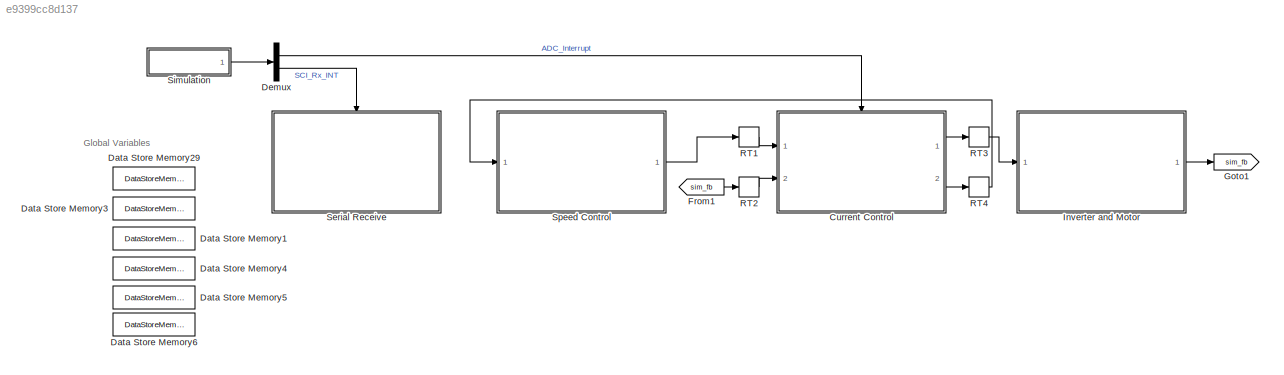
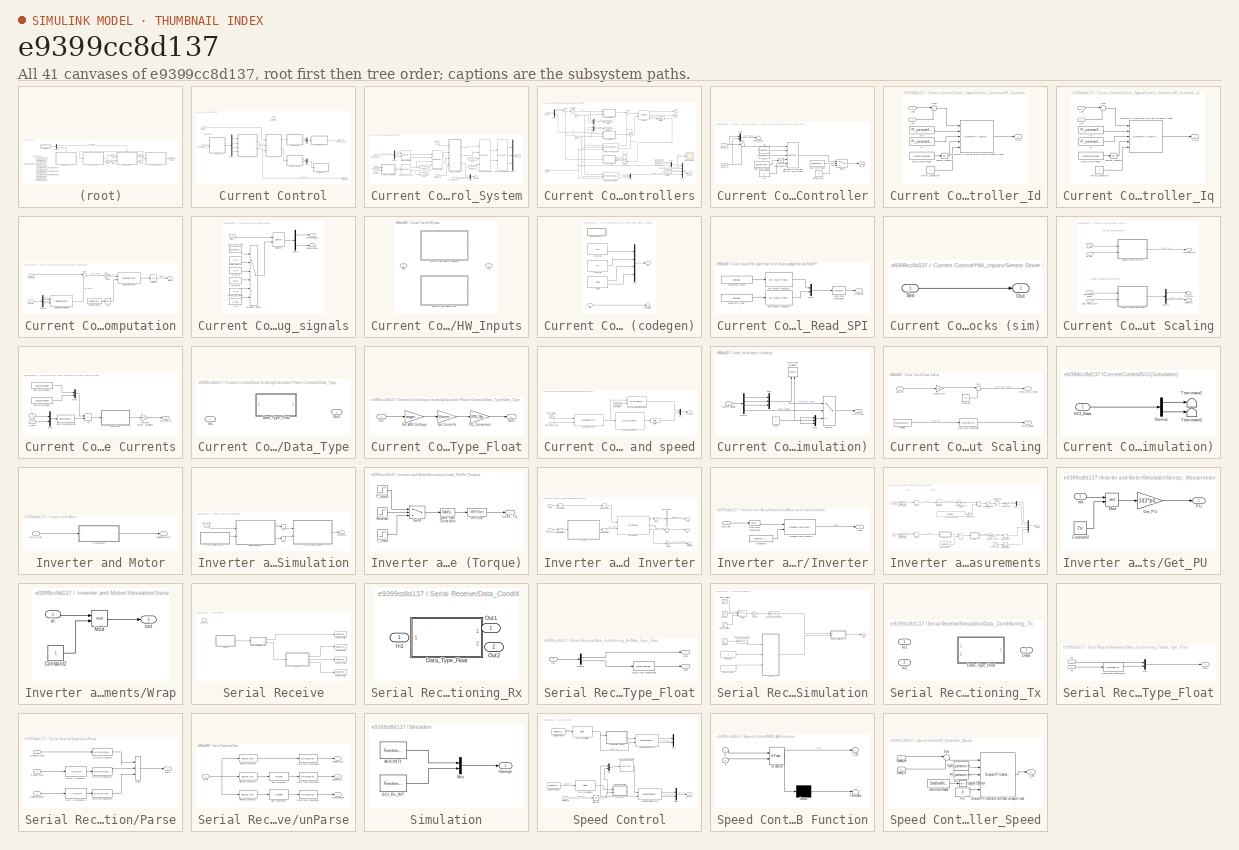
[diagram: thumbnail index - all 41 canvases of the model, root first then tree order]
MODEL slx_e9399cc8d137
KIND model
CONFIG AbsTol = auto
CONFIG EnableMultiTasking = off
CONFIG FixedStep = auto
CONFIG MaxStep = auto
CONFIG MinStep = auto
CONFIG RelTol = 1e-3
CONFIG SampleTimeConstraint = Unconstrained
CONFIG SolverName = VariableStepAuto
CONFIG StartTime = 0.0
CONFIG StopTime = 10.0
BLOCK [SubSystem] Current Control
  Ports = [2, 2, 0, 1]
  RTWMemSecFuncExecute = code_ramfuncs
  RTWSystemCode = Nonreusable function
  RequestExecContextInheritance = off
BLOCK [TriggerPort] Current Control/ADC Interrupt
  Ports = []
  StatesWhenEnabling = held
  TriggerType = function-call
  VariantControl = Variant
BLOCK [SubSystem] Current Control/Control_System
  Ports = [3, 2]
  RTWMemSecFuncExecute = code_ramfuncs
  RequestExecContextInheritance = off
BLOCK [Reference] Current Control/Control_System/Clarke Transform  REF=mcbcontrolslib/Clarke Transform
  Ports = [2, 2]
  SourceBlock = mcbcontrolslib/Clarke Transform
  SourceProductBaseCode = MT
  SourceType = Clarke Transform
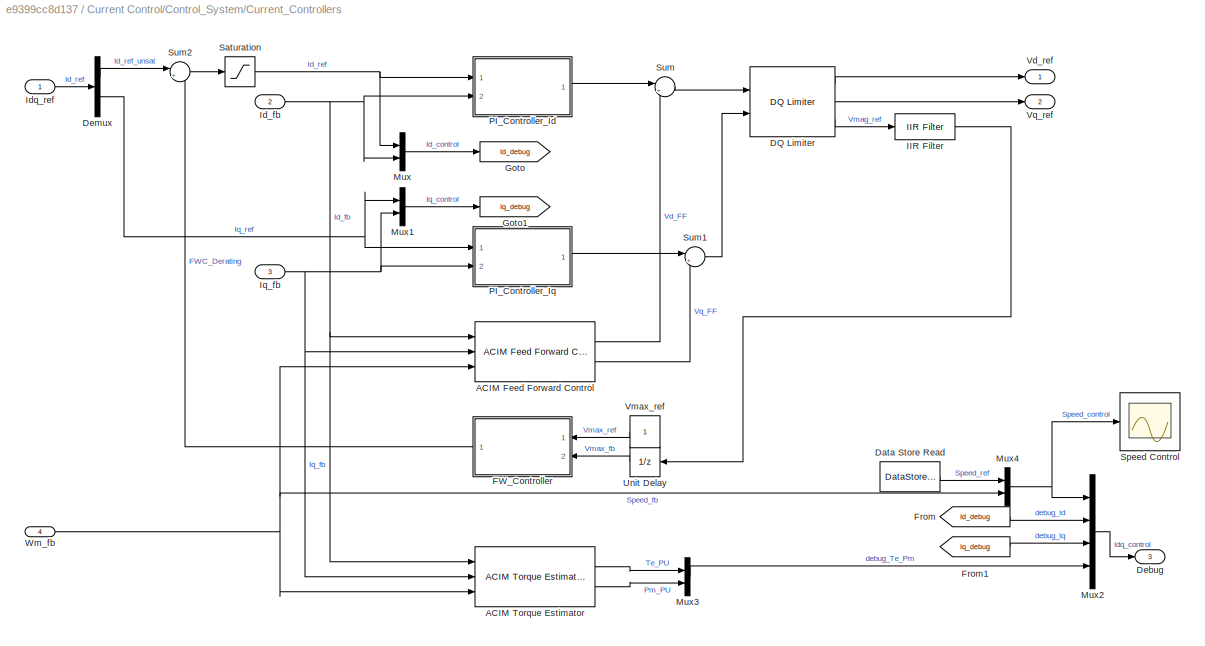
BLOCK [SubSystem] Current Control/Control_System/Current_Controllers
  Ports = [4, 3]
  RequestExecContextInheritance = off
BLOCK [Reference] Current Control/Control_System/Current_Controllers/ACIM Feed Forward Control  REF=mcbcontrolslib/ACIM Feed Forward Control
  Ports = [3, 2]
  SourceBlock = mcbcontrolslib/ACIM Feed Forward Control
  SourceProductBaseCode = MT
  SourceType = ACIM Feed Forward Control
BLOCK [Reference] Current Control/Control_System/Current_Controllers/ACIM Torque Estimator  REF=mcbcontrolslib/ACIM Torque Estimator
  Ports = [3, 2]
  SourceBlock = mcbcontrolslib/ACIM Torque Estimator
  SourceProductBaseCode = MT
  SourceType = ACIM Torque Estimator
BLOCK [Reference] Current Control/Control_System/Current_Controllers/DQ Limiter  REF=mcbcontrolslib/DQ Limiter
  Ports = [2, 3]
  SourceBlock = mcbcontrolslib/DQ Limiter
  SourceProductBaseCode = MT
  SourceType = DQ Limiter
BLOCK [DataStoreRead] Current Control/Control_System/Current_Controllers/Data Store Read
  DataStoreName = Speed_ref
  IndexOptions = Index vector (dialog)
  Indices = 1
  OutputSizes = 1
  Ports = [0, 1]
BLOCK [Outport] Current Control/Control_System/Current_Controllers/Debug
  Port = 3
  VectorParamsAs1DForOutWhenUnconnected = off
BLOCK [Demux] Current Control/Control_System/Current_Controllers/Demux
  Outputs = 2
  Ports = [1, 2]
BLOCK [SubSystem] Current Control/Control_System/Current_Controllers/FW_Controller
  Ports = [2, 1]
  RequestExecContextInheritance = off
BLOCK [Constant] Current Control/Control_System/Current_Controllers/FW_Controller/Bypass_FWC
  OutDataTypeStr = Inherit: Inherit via back propagation
  SampleTime = -1
  Value = 0
BLOCK [DataStoreRead] Current Control/Control_System/Current_Controllers/FW_Controller/Data Store Read
  DataStoreName = Enable_fwc
  IndexOptions = Index vector (dialog)
  Indices = 1
  OutputSizes = 1
  Ports = [0, 1]
BLOCK [DataStoreRead] Current Control/Control_System/Current_Controllers/FW_Controller/Data Store Read2
  DataStoreName = Enable
  IndexOptions = Index vector (dialog)
  Indices = 1
  OutputSizes = 1
  Ports = [0, 1]
BLOCK [Reference] Current Control/Control_System/Current_Controllers/FW_Controller/Discrete PI Controller with anti-windup & reset  REF=mcbcontrolslib/Discrete PI Controller 
with anti-windup & reset
  Ports = [5, 1]
  SourceBlock = mcbcontrolslib/Discrete PI Controller \nwith anti-windup & reset
  SourceProductBaseCode = MT
  SourceType = Discrete PI Controller with anti-windup and reset
BLOCK [Outport] Current Control/Control_System/Current_Controllers/FW_Controller/Id_fwc
  VectorParamsAs1DForOutWhenUnconnected = off
BLOCK [Constant] Current Control/Control_System/Current_Controllers/FW_Controller/Ki
  OutDataTypeStr = dataType
  SampleTime = -1
  Value = PI_params.Ki_fwc*Ts
BLOCK [Constant] Current Control/Control_System/Current_Controllers/FW_Controller/Ki1
  NameLocation = top
  OutDataTypeStr = dataType
  SampleTime = -1
  Value = 0
BLOCK [Constant] Current Control/Control_System/Current_Controllers/FW_Controller/Kp
  NameLocation = top
  OutDataTypeStr = dataType
  SampleTime = -1
  Value = PI_params.Kp_fwc
BLOCK [Logic] Current Control/Control_System/Current_Controllers/FW_Controller/Logical Operator
  AllPortsSameDT = off
  IconShape = distinctive
  Operator = NOT
  OutDataTypeStr = boolean
  Ports = [1, 1]
BLOCK [Mux] Current Control/Control_System/Current_Controllers/FW_Controller/Mux
  DisplayOption = bar
  Inputs = 2
  Ports = [2, 1]
BLOCK [Sum] Current Control/Control_System/Current_Controllers/FW_Controller/Sum
  AccumDataTypeStr = Inherit: Same as first input
  Inputs = |+-
  OutDataTypeStr = Inherit: Same as first input
  Ports = [2, 1]
BLOCK [Switch] Current Control/Control_System/Current_Controllers/FW_Controller/Switch
  Criteria = u2 > Threshold
  InputSameDT = off
  SaturateOnIntegerOverflow = off
BLOCK [Terminator] Current Control/Control_System/Current_Controllers/FW_Controller/Terminator
BLOCK [Inport] Current Control/Control_System/Current_Controllers/FW_Controller/Vmax_fb
  Port = 2
BLOCK [Inport] Current Control/Control_System/Current_Controllers/FW_Controller/Vmax_ref
BLOCK [From] Current Control/Control_System/Current_Controllers/From
  GotoTag = Id_debug
BLOCK [From] Current Control/Control_System/Current_Controllers/From1
  GotoTag = Iq_debug
BLOCK [Goto] Current Control/Control_System/Current_Controllers/Goto
  GotoTag = Id_debug
BLOCK [Goto] Current Control/Control_System/Current_Controllers/Goto1
  GotoTag = Iq_debug
BLOCK [Reference] Current Control/Control_System/Current_Controllers/IIR Filter  REF=mcbcontrolslib/IIR Filter
  Ports = [1, 1]
  SourceBlock = mcbcontrolslib/IIR Filter
  SourceProductBaseCode = MT
  SourceType = IIR Filter
BLOCK [Inport] Current Control/Control_System/Current_Controllers/Id_fb
  Port = 2
BLOCK [Inport] Current Control/Control_System/Current_Controllers/Idq_ref
BLOCK [Inport] Current Control/Control_System/Current_Controllers/Iq_fb
  Port = 3
BLOCK [Mux] Current Control/Control_System/Current_Controllers/Mux
  DisplayOption = bar
  Inputs = 2
  Ports = [2, 1]
BLOCK [Mux] Current Control/Control_System/Current_Controllers/Mux1
  DisplayOption = bar
  Inputs = 2
  Ports = [2, 1]
BLOCK [Mux] Current Control/Control_System/Current_Controllers/Mux2
  DisplayOption = bar
  Ports = [4, 1]
BLOCK [Mux] Current Control/Control_System/Current_Controllers/Mux3
  DisplayOption = bar
  Inputs = 2
  Ports = [2, 1]
BLOCK [Mux] Current Control/Control_System/Current_Controllers/Mux4
  DisplayOption = bar
  Inputs = 2
  Ports = [2, 1]
BLOCK [SubSystem] Current Control/Control_System/Current_Controllers/PI_Controller_Id
  Ports = [2, 1]
  RequestExecContextInheritance = off
BLOCK [DataStoreRead] Current Control/Control_System/Current_Controllers/PI_Controller_Id/Data Store Read1
  DataStoreName = Enable
  IndexOptions = Index vector (dialog)
  Indices = 1
  OutputSizes = 1
  Ports = [0, 1]
BLOCK [Reference] Current Control/Control_System/Current_Controllers/PI_Controller_Id/Discrete PI Controller with anti-windup & reset  REF=mcbcontrolslib/Discrete PI Controller 
with anti-windup & reset
  Ports = [5, 1]
  SourceBlock = mcbcontrolslib/Discrete PI Controller \nwith anti-windup & reset
  SourceProductBaseCode = MT
  SourceType = Discrete PI Controller with anti-windup and reset
BLOCK [Inport] Current Control/Control_System/Current_Controllers/PI_Controller_Id/I_fb
  Port = 2
BLOCK [Inport] Current Control/Control_System/Current_Controllers/PI_Controller_Id/I_ref
BLOCK [Constant] Current Control/Control_System/Current_Controllers/PI_Controller_Id/Initial_Condition
  OutDataTypeStr = dataType
  SampleTime = -1
  Value = 0
BLOCK [Constant] Current Control/Control_System/Current_Controllers/PI_Controller_Id/Ki
  OutDataTypeStr = dataType
  SampleTime = -1
  Value = PI_params.Ki_id*Ts
BLOCK [Constant] Current Control/Control_System/Current_Controllers/PI_Controller_Id/Kp
  NameLocation = top
  OutDataTypeStr = dataType
  SampleTime = -1
  Value = PI_params.Kp_id
BLOCK [Logic] Current Control/Control_System/Current_Controllers/PI_Controller_Id/Logical Operator
  AllPortsSameDT = off
  IconShape = distinctive
  Operator = NOT
  OutDataTypeStr = boolean
  Ports = [1, 1]
BLOCK [Sum] Current Control/Control_System/Current_Controllers/PI_Controller_Id/Sum
  AccumDataTypeStr = Inherit: Same as first input
  Inputs = |+-
  OutDataTypeStr = Inherit: Same as first input
  Ports = [2, 1]
BLOCK [Outport] Current Control/Control_System/Current_Controllers/PI_Controller_Id/Vd_ref
  VectorParamsAs1DForOutWhenUnconnected = off
BLOCK [SubSystem] Current Control/Control_System/Current_Controllers/PI_Controller_Iq
  Ports = [2, 1]
  RequestExecContextInheritance = off
BLOCK [DataStoreRead] Current Control/Control_System/Current_Controllers/PI_Controller_Iq/Data Store Read1
  DataStoreName = Enable
  IndexOptions = Index vector (dialog)
  Indices = 1
  OutputSizes = 1
  Ports = [0, 1]
BLOCK [Reference] Current Control/Control_System/Current_Controllers/PI_Controller_Iq/Discrete PI Controller with anti-windup & reset  REF=mcbcontrolslib/Discrete PI Controller 
with anti-windup & reset
  Ports = [5, 1]
  SourceBlock = mcbcontrolslib/Discrete PI Controller \nwith anti-windup & reset
  SourceProductBaseCode = MT
  SourceType = Discrete PI Controller with anti-windup and reset
BLOCK [Inport] Current Control/Control_System/Current_Controllers/PI_Controller_Iq/I_fb
  Port = 2
BLOCK [Inport] Current Control/Control_System/Current_Controllers/PI_Controller_Iq/I_ref
BLOCK [Constant] Current Control/Control_System/Current_Controllers/PI_Controller_Iq/Initial_Condition
  OutDataTypeStr = dataType
  SampleTime = -1
  Value = 0
BLOCK [Constant] Current Control/Control_System/Current_Controllers/PI_Controller_Iq/Ki
  OutDataTypeStr = dataType
  SampleTime = -1
  Value = PI_params.Ki_i*Ts
BLOCK [Constant] Current Control/Control_System/Current_Controllers/PI_Controller_Iq/Kp
  NameLocation = top
  OutDataTypeStr = dataType
  SampleTime = -1
  Value = PI_params.Kp_i
BLOCK [Logic] Current Control/Control_System/Current_Controllers/PI_Controller_Iq/Logical Operator
  AllPortsSameDT = off
  IconShape = distinctive
  Operator = NOT
  OutDataTypeStr = boolean
  Ports = [1, 1]
BLOCK [Sum] Current Control/Control_System/Current_Controllers/PI_Controller_Iq/Sum
  AccumDataTypeStr = Inherit: Same as first input
  Inputs = |+-
  OutDataTypeStr = Inherit: Same as first input
  Ports = [2, 1]
BLOCK [Outport] Current Control/Control_System/Current_Controllers/PI_Controller_Iq/Vq_ref
  VectorParamsAs1DForOutWhenUnconnected = off
BLOCK [Saturate] Current Control/Control_System/Current_Controllers/Saturation
  LowerLimit = 0.05
BLOCK [Scope] Current Control/Control_System/Current_Controllers/Speed Control
  Floating = off
  NumInputPorts = 1
  Ports = [1]
  ScopeSpecificationString = Simulink.scopes.TimeScopeBlockCfg('CurrentConfiguration', extmgr.ConfigurationSet(extmgr.Configuration('Core','General UI',true),extmgr.Configuration('Core','Source UI',true),extmgr.Configuration('Sources','WiredSimulink',true,'DataLoggingSaveFormat','StructureWithTime'),extmgr.Configuration('Visuals','Time Domain',true,'SerializedDisplays',{struct('MinYLimReal','-2','MaxYLimReal','2','YLabelReal'...<+1524ch>
BLOCK [Sum] Current Control/Control_System/Current_Controllers/Sum
  Inputs = |++
  Ports = [2, 1]
BLOCK [Sum] Current Control/Control_System/Current_Controllers/Sum1
  Inputs = |++
  Ports = [2, 1]
BLOCK [Sum] Current Control/Control_System/Current_Controllers/Sum2
  Inputs = |++
  Ports = [2, 1]
BLOCK [UnitDelay] Current Control/Control_System/Current_Controllers/Unit Delay
  HasFrameUpgradeWarning = on
  SampleTime = -1
BLOCK [Outport] Current Control/Control_System/Current_Controllers/Vd_ref
  NameLocation = top
  VectorParamsAs1DForOutWhenUnconnected = off
BLOCK [Constant] Current Control/Control_System/Current_Controllers/Vmax_ref
  NameLocation = top
  OutDataTypeStr = dataType
  SampleTime = -1
BLOCK [Outport] Current Control/Control_System/Current_Controllers/Vq_ref
  Port = 2
  VectorParamsAs1DForOutWhenUnconnected = off
BLOCK [Inport] Current Control/Control_System/Current_Controllers/Wm_fb
  Port = 4
BLOCK [Outport] Current Control/Control_System/Debug
  NameLocation = top
  Port = 2
  VectorParamsAs1DForOutWhenUnconnected = off
BLOCK [Demux] Current Control/Control_System/Demux1
  Outputs = 2
  Ports = [1, 2]
BLOCK [From] Current Control/Control_System/From
  GotoTag = sinTheta
BLOCK [From] Current Control/Control_System/From1
  GotoTag = cosTheta
BLOCK [Goto] Current Control/Control_System/Goto
  GotoTag = sinTheta
BLOCK [Goto] Current Control/Control_System/Goto1
  GotoTag = cosTheta
BLOCK [Inport] Current Control/Control_System/Iab_meas_PU
  NameLocation = top
  Port = 2
BLOCK [InportShadow] Current Control/Control_System/Iab_meas_PU1
  NameLocation = top
  Port = 2
BLOCK [Inport] Current Control/Control_System/Idq_ref
  NameLocation = top
BLOCK [InportShadow] Current Control/Control_System/Idq_ref1
BLOCK [Reference] Current Control/Control_System/Inverse Park Transform  REF=mcbcontrolslib/Inverse Park Transform
  Ports = [4, 2]
  SourceBlock = mcbcontrolslib/Inverse Park Transform
  SourceProductBaseCode = MT
  SourceType = Inverse Park Transform
BLOCK [Mux] Current Control/Control_System/Mux1
  DisplayOption = bar
  Inputs = 3
  Ports = [3, 1]
BLOCK [Mux] Current Control/Control_System/Mux3
  DisplayOption = bar
  Inputs = 2
  Ports = [2, 1]
BLOCK [Reference] Current Control/Control_System/Park Transform  REF=mcbcontrolslib/Park Transform
  Ports = [4, 2]
  SourceBlock = mcbcontrolslib/Park Transform
  SourceProductBaseCode = MT
  SourceType = Park Transform
BLOCK [SubSystem] Current Control/Control_System/Position_Computation
  Ports = [2, 1]
  RequestExecContextInheritance = off
BLOCK [Reference] Current Control/Control_System/Position_Computation/ACIM Slip Speed Estimator  REF=mcbcontrolslib/ACIM Slip Speed Estimator
  Ports = [2, 1]
  SourceBlock = mcbcontrolslib/ACIM Slip Speed Estimator
  SourceProductBaseCode = MT
  SourceType = ACIM Slip Speed Estimator
BLOCK [DataStoreRead] Current Control/Control_System/Position_Computation/Data Store Read3
  DataStoreName = Enable
  IndexOptions = Index vector (dialog)
  Indices = 1
  OutputSizes = 1
  Ports = [0, 1]
BLOCK [Demux] Current Control/Control_System/Position_Computation/Demux2
  Outputs = 2
  Ports = [1, 2]
BLOCK [Gain] Current Control/Control_System/Position_Computation/Gain3
  Gain = (2*pi/60)*PU_System.N_base*acim.p*Ts/(2*pi)
  OutDataTypeStr = Inherit: Same as input
  RndMeth = Simplest
BLOCK [Inport] Current Control/Control_System/Position_Computation/Idq_ref
  Port = 2
BLOCK [Logic] Current Control/Control_System/Position_Computation/NOT
  AllPortsSameDT = off
  IconShape = distinctive
  Operator = NOT
  OutDataTypeStr = boolean
  Ports = [1, 1]
BLOCK [Reference] Current Control/Control_System/Position_Computation/Position Generator  REF=mcbcontrolslib/Position Generator
  Ports = [2, 1]
  SourceBlock = mcbcontrolslib/Position Generator
  SourceProductBaseCode = MT
  SourceType = Position Generator
BLOCK [Inport] Current Control/Control_System/Position_Computation/Speed_fb
BLOCK [Sum] Current Control/Control_System/Position_Computation/Sum
  Inputs = |++
  Ports = [2, 1]
BLOCK [UnitDelay] Current Control/Control_System/Position_Computation/Unit Delay
  HasFrameUpgradeWarning = on
  SampleTime = -1
BLOCK [Outport] Current Control/Control_System/Position_Computation/theta_e
BLOCK [Reference] Current Control/Control_System/Sine-Cosine Lookup  REF=mcbcontrolslib/Sine-Cosine Lookup
  Ports = [1, 2]
  SourceBlock = mcbcontrolslib/Sine-Cosine Lookup
  SourceProductBaseCode = MT
  SourceType = Sine-Cosine Lookup
BLOCK [Reference] Current Control/Control_System/Space Vector Generator  REF=mcbcontrolslib/Space Vector Generator
  Ports = [2, 3]
  SourceBlock = mcbcontrolslib/Space Vector Generator
  SourceProductBaseCode = MT
  SourceType = Space Vector Generator
BLOCK [Inport] Current Control/Control_System/Speed_fb
  Port = 3
BLOCK [InportShadow] Current Control/Control_System/Speed_fb1
  Port = 3
BLOCK [Outport] Current Control/Control_System/Vabc_ref
  VectorParamsAs1DForOutWhenUnconnected = off
BLOCK [SubSystem] Current Control/Debug_signals
  Ports = [1, 2]
  RequestExecContextInheritance = off
BLOCK [Inport] Current Control/Debug_signals/Data
BLOCK [DataStoreRead] Current Control/Debug_signals/Data Store Read
  DataStoreName = Debug_signals
  IndexOptions = Index vector (dialog)
  Indices = 1
  OutputSizes = 1
  Ports = [0, 1]
BLOCK [Outport] Current Control/Debug_signals/Debug_signal_1
BLOCK [Outport] Current Control/Debug_signals/Debug_signal_2
  Port = 2
BLOCK [Demux] Current Control/Debug_signals/Demux
  Outputs = 2
  Ports = [1, 2]
BLOCK [Constant] Current Control/Debug_signals/Ia_Ib
  OutDataTypeStr = uint16
  SampleTime = -1
  Value = [9 10]
BLOCK [Constant] Current Control/Debug_signals/Id_control
  OutDataTypeStr = uint16
  SampleTime = -1
  Value = [3 4]
BLOCK [Constant] Current Control/Debug_signals/Iq_control
  OutDataTypeStr = uint16
  SampleTime = -1
  Value = [5 6]
BLOCK [MultiPortSwitch] Current Control/Debug_signals/Multiport Switch
  DiagnosticForDefault = Warning
  InputSameDT = off
  Inputs = 5
  OutDataTypeStr = uint16
  Ports = [6, 1]
  RndMeth = Simplest
  SaturateOnIntegerOverflow = off
BLOCK [Selector] Current Control/Debug_signals/Selector
  IndexOptions = Index vector (port)
  Indices = [1 3]
  InputPortWidth = 10
  OutputSizes = 1
  Ports = [2, 1]
BLOCK [Constant] Current Control/Debug_signals/Torque_and_Power
  OutDataTypeStr = uint16
  SampleTime = -1
  Value = [7 8]
BLOCK [Constant] Current Control/Debug_signals/speed_control
  OutDataTypeStr = uint16
  SampleTime = -1
  Value = [1 2]
BLOCK [Demux] Current Control/Demux1
  Ports = [1, 4]
BLOCK [Outport] Current Control/Duty_Cycles
  InitialOutput = 0
  VectorParamsAs1DForOutWhenUnconnected = off
BLOCK [Inport] Current Control/Feedbacks_sim
  Port = 2
BLOCK [SubSystem] Current Control/HW_Inputs
  Ports = [1, 1]
  RequestExecContextInheritance = off
  Variant = on
  VariantControlMode = sim codegen switching
BLOCK [Outport] Current Control/HW_Inputs/Out
BLOCK [SubSystem] Current Control/HW_Inputs/Sensor Driver Blocks (codegen)
  Ports = [1, 1]
  RequestExecContextInheritance = off
  VariantControl = (codegen)
BLOCK [Reference] Current Control/HW_Inputs/Sensor Driver Blocks (codegen)/ADC_B_IN2  REF=c2802xlib/ADC
  Ports = [0, 1]
  SourceBlock = c2802xlib/ADC
  SourceProductBaseCode = TIC2000
  SourceType = C2802x/03x/05x/06x/M3x/37x/07x/004x/38x/002x ADC
  UserDataPersistent = on
BLOCK [Reference] Current Control/HW_Inputs/Sensor Driver Blocks (codegen)/ADC_C_IN2  REF=c2802xlib/ADC
  Ports = [0, 1]
  SourceBlock = c2802xlib/ADC
  SourceProductBaseCode = TIC2000
  SourceType = C2802x/03x/05x/06x/M3x/37x/07x/004x/38x/002x ADC
  UserDataPersistent = on
BLOCK [Mux] Current Control/HW_Inputs/Sensor Driver Blocks (codegen)/Mux1
  DisplayOption = bar
  Ports = [4, 1]
BLOCK [SubSystem] Current Control/HW_Inputs/Sensor Driver Blocks (codegen)/Optional_Read_SPI
  Commented = on
  Ports = [0, 1]
  RequestExecContextInheritance = off
BLOCK [DataTypeConversion] Current Control/HW_Inputs/Sensor Driver Blocks (codegen)/Optional_Read_SPI/Data Type Conversion1
  ConvertRealWorld = Stored Integer (SI)
  OutDataTypeStr = uint32
  RndMeth = Simplest
  SaturateOnIntegerOverflow = off
BLOCK [Mux] Current Control/HW_Inputs/Sensor Driver Blocks (codegen)/Optional_Read_SPI/Mux3
  DisplayOption = bar
  Inputs = 2
  Ports = [2, 1]
BLOCK [Constant] Current Control/HW_Inputs/Sensor Driver Blocks (codegen)/Optional_Read_SPI/Read_ADC_Gain
  OutDataTypeStr = uint16
  Priority = 2000
  SampleTime = -1
  Value = 0xD000
BLOCK [Constant] Current Control/HW_Inputs/Sensor Driver Blocks (codegen)/Optional_Read_SPI/Read_PWM_mode
  OutDataTypeStr = uint16
  Priority = 2000
  SampleTime = -1
  Value = 0xB800
BLOCK [Outport] Current Control/HW_Inputs/Sensor Driver Blocks (codegen)/Optional_Read_SPI/Read_SPI
BLOCK [Reference] Current Control/HW_Inputs/Sensor Driver Blocks (codegen)/Optional_Read_SPI/SPI Master Transfer2  REF=c280xlib/SPI Master Transfer
  Ports = [1, 1]
  SourceBlock = c280xlib/SPI Master Transfer
  SourceProductBaseCode = TIC2000
  SourceType = codertarget.tic2000.blocks.SPIMasterTransfer
BLOCK [Reference] Current Control/HW_Inputs/Sensor Driver Blocks (codegen)/Optional_Read_SPI/SPI Master Transfer5  REF=c280xlib/SPI Master Transfer
  Ports = [1, 1]
  SourceBlock = c280xlib/SPI Master Transfer
  SourceProductBaseCode = TIC2000
  SourceType = codertarget.tic2000.blocks.SPIMasterTransfer
BLOCK [Outport] Current Control/HW_Inputs/Sensor Driver Blocks (codegen)/Out
BLOCK [Inport] Current Control/HW_Inputs/Sensor Driver Blocks (codegen)/Sim
BLOCK [Terminator] Current Control/HW_Inputs/Sensor Driver Blocks (codegen)/Terminator
BLOCK [Reference] Current Control/HW_Inputs/Sensor Driver Blocks (codegen)/eQEP  REF=c280xlib/eQEP
  Ports = [0, 2]
  SourceBlock = c280xlib/eQEP
  SourceProductBaseCode = TIC2000
  SourceType = C28x eQEP
BLOCK [SubSystem] Current Control/HW_Inputs/Sensor Driver Blocks (sim)
  Ports = [1, 1]
  RequestExecContextInheritance = off
  VariantControl = (sim)
BLOCK [Outport] Current Control/HW_Inputs/Sensor Driver Blocks (sim)/Out
BLOCK [Inport] Current Control/HW_Inputs/Sensor Driver Blocks (sim)/Sim
BLOCK [Inport] Current Control/HW_Inputs/Sim
BLOCK [Inport] Current Control/Idq_ref
BLOCK [SubSystem] Current Control/Input Scaling
  Ports = [4, 2]
  RequestExecContextInheritance = off
BLOCK [SubSystem] Current Control/Input Scaling/Calculate Phase Currents
  Ports = [2, 1]
  RequestExecContextInheritance = off
BLOCK [Sum] Current Control/Input Scaling/Calculate Phase Currents/Add
  IconShape = rectangular
  Inputs = -+
  Ports = [2, 1]
BLOCK [DataStoreRead] Current Control/Input Scaling/Calculate Phase Currents/Data Store Read1
  DataStoreName = IaOffset
  IndexOptions = Index vector (dialog)
  Indices = 1
  OutputSizes = 1
  Ports = [0, 1]
BLOCK [DataStoreRead] Current Control/Input Scaling/Calculate Phase Currents/Data Store Read2
  DataStoreName = IbOffset
  IndexOptions = Index vector (dialog)
  Indices = 1
  OutputSizes = 1
  Ports = [0, 1]
BLOCK [DataTypeConversion] Current Control/Input Scaling/Calculate Phase Currents/Data Type Conversion
  ConvertRealWorld = Stored Integer (SI)
  OutDataTypeStr = int32
  RndMeth = Simplest
  SaturateOnIntegerOverflow = off
BLOCK [SubSystem] Current Control/Input Scaling/Calculate Phase Currents/Data_Type
  Ports = [1, 1]
  RequestExecContextInheritance = off
  Variant = on
BLOCK [SubSystem] Current Control/Input Scaling/Calculate Phase Currents/Data_Type/Data_Type_Float
  Ports = [1, 1]
  RequestExecContextInheritance = off
  VariantControl = isequal(dataType,'single')
BLOCK [Gain] Current Control/Input Scaling/Calculate Phase Currents/Data_Type/Data_Type_Float/Get ADC Voltage
  Gain = target.ADC_Vref /target.ADC_MaxCount
  OutDataTypeStr = dataType
  RndMeth = Simplest
BLOCK [Gain] Current Control/Input Scaling/Calculate Phase Currents/Data_Type/Data_Type_Float/Get Currents
  Gain = 1/inverter.ISenseVoltPerAmp
  OutDataTypeStr = Inherit: Same as input
  RndMeth = Simplest
BLOCK [Inport] Current Control/Input Scaling/Calculate Phase Currents/Data_Type/Data_Type_Float/In1
BLOCK [Outport] Current Control/Input Scaling/Calculate Phase Currents/Data_Type/Data_Type_Float/Out1
BLOCK [Gain] Current Control/Input Scaling/Calculate Phase Currents/Data_Type/Data_Type_Float/PU_Conversion
  Gain = 1/PU_System.I_base
  OutDataTypeStr = Inherit: Same as input
  RndMeth = Simplest
BLOCK [Inport] Current Control/Input Scaling/Calculate Phase Currents/Data_Type/In1
BLOCK [Outport] Current Control/Input Scaling/Calculate Phase Currents/Data_Type/Out1
BLOCK [Inport] Current Control/Input Scaling/Calculate Phase Currents/Ia_ADC
BLOCK [Outport] Current Control/Input Scaling/Calculate Phase Currents/Iab_meas_PU
  VectorParamsAs1DForOutWhenUnconnected = off
BLOCK [Inport] Current Control/Input Scaling/Calculate Phase Currents/Ib_ADC
  Port = 2
BLOCK [Gain] Current Control/Input Scaling/Calculate Phase Currents/Inverting // Non-inverting Current measurement amplifieer
  Gain = inverter.invertingAmp
  OutDataTypeStr = Inherit: Same as input
  RndMeth = Simplest
BLOCK [Mux] Current Control/Input Scaling/Calculate Phase Currents/Mux
  DisplayOption = bar
  Inputs = 2
  Ports = [2, 1]
BLOCK [Mux] Current Control/Input Scaling/Calculate Phase Currents/Mux1
  DisplayOption = bar
  Inputs = 2
  Ports = [2, 1]
BLOCK [SubSystem] Current Control/Input Scaling/Calculate position and speed
  Ports = [2, 1]
  RequestExecContextInheritance = off
BLOCK [Reference] Current Control/Input Scaling/Calculate position and speed/IIR Filter  REF=mcbcontrolslib/IIR Filter
  Ports = [1, 1]
  SourceBlock = mcbcontrolslib/IIR Filter
  SourceProductBaseCode = MT
  SourceType = IIR Filter
BLOCK [Constant] Current Control/Input Scaling/Calculate position and speed/IndexOffset
  OutDataTypeStr = dataType
  SampleTime = -1
  Value = acim.PositionOffset
BLOCK [Reference] Current Control/Input Scaling/Calculate position and speed/Mechanical to Electrical Position  REF=mcbpositiondecoderlib/Mechanical to Electrical Position
  Ports = [2, 1]
  SourceBlock = mcbpositiondecoderlib/Mechanical to Electrical Position
  SourceProductBaseCode = MT
  SourceType = Mechanical to Electrical Position
BLOCK [Mux] Current Control/Input Scaling/Calculate position and speed/Mux
  DisplayOption = bar
  Inputs = 2
  Ports = [2, 1]
BLOCK [Outport] Current Control/Input Scaling/Calculate position and speed/Pos//Speed
  VectorParamsAs1DForOutWhenUnconnected = off
BLOCK [Inport] Current Control/Input Scaling/Calculate position and speed/QEP_Index_Latch
  Port = 2
BLOCK [Inport] Current Control/Input Scaling/Calculate position and speed/QEP_Position_Count
BLOCK [Reference] Current Control/Input Scaling/Calculate position and speed/Quadrature Decoder  REF=mcbpositiondecoderlib/Quadrature Decoder
  Ports = [2, 1]
  SourceBlock = mcbpositiondecoderlib/Quadrature Decoder
  SourceProductBaseCode = MT
  SourceType = Quadrature Decoder
BLOCK [Reference] Current Control/Input Scaling/Calculate position and speed/Speed Measurement  REF=mcbpositiondecoderlib/Speed Measurement
  Ports = [1, 1]
  SourceBlock = mcbpositiondecoderlib/Speed Measurement
  SourceProductBaseCode = MT
  SourceType = Speed Measurement
BLOCK [Demux] Current Control/Input Scaling/Demux
  Outputs = 2
  Ports = [1, 2]
BLOCK [Inport] Current Control/Input Scaling/Ia_ADC
BLOCK [Outport] Current Control/Input Scaling/Iab_meas_PU
BLOCK [Inport] Current Control/Input Scaling/Ib_ADC
  Port = 2
BLOCK [Inport] Current Control/Input Scaling/QEP_Index_Latch
  Port = 4
BLOCK [Inport] Current Control/Input Scaling/QEP_Position_Count
  Port = 3
BLOCK [Outport] Current Control/Input Scaling/Speed_PU
  Port = 2
BLOCK [Terminator] Current Control/Input Scaling/Terminator
BLOCK [SubSystem] Current Control/Inverter (Simulation)
  Ports = [1, 1]
  RequestExecContextInheritance = off
BLOCK [DataTypeDuplicate] Current Control/Inverter (Simulation)/Data Type Duplicate
  Ports = [2]
BLOCK [Demux] Current Control/Inverter (Simulation)/Demux
  Ports = [1, 4]
BLOCK [Outport] Current Control/Inverter (Simulation)/DutyCycles
  VectorParamsAs1DForOutWhenUnconnected = off
BLOCK [Inport] Current Control/Inverter (Simulation)/Inverter Signals
BLOCK [Mux] Current Control/Inverter (Simulation)/Mux
  DisplayOption = bar
  Inputs = 3
  Ports = [3, 1]
BLOCK [Mux] Current Control/Inverter (Simulation)/Mux2
  DisplayOption = bar
  Inputs = 3
  Ports = [3, 1]
BLOCK [Switch] Current Control/Inverter (Simulation)/Switch1
  InputSameDT = off
  RndMeth = Simplest
  SaturateOnIntegerOverflow = off
  Threshold = 0.5
BLOCK [Constant] Current Control/Inverter (Simulation)/stop
  OutDataTypeStr = Inherit: Inherit via back propagation
  Value = 0
BLOCK [Mux] Current Control/Mux
  DisplayOption = bar
  Inputs = 2
  Ports = [2, 1]
BLOCK [Mux] Current Control/Mux1
  DisplayOption = bar
  Inputs = 2
  Ports = [2, 1]
BLOCK [SubSystem] Current Control/Output Scaling
  Ports = [1, 2]
  RequestExecContextInheritance = off
BLOCK [Constant] Current Control/Output Scaling/Constant
  OutDataTypeStr = dataType
  SampleTime = -1
  Value = 0.5
BLOCK [DataTypeConversion] Current Control/Output Scaling/Data Type Conversion
  OutDataTypeStr = dataType
  RndMeth = Floor
  SaturateOnIntegerOverflow = off
BLOCK [DataStoreRead] Current Control/Output Scaling/Enable
  DataStoreName = Enable
  IndexOptions = Index vector (dialog)
  Indices = 1
  OutputSizes = 1
  Ports = [0, 1]
BLOCK [Gain] Current Control/Output Scaling/One_by_Two
  Gain = 0.5
  OutDataTypeStr = Inherit: Same as input
  RndMeth = Simplest
BLOCK [Outport] Current Control/Output Scaling/PWM_Duty_Cycles
BLOCK [Outport] Current Control/Output Scaling/PWM_Enable
  Port = 2
BLOCK [Sum] Current Control/Output Scaling/Sum
  AccumDataTypeStr = Inherit: Same as first input
  Inputs = |++
  Ports = [2, 1]
BLOCK [Inport] Current Control/Output Scaling/Vabc_ref
BLOCK [SubSystem] Current Control/SCI (Simulation)
  Ports = [1]
  RequestExecContextInheritance = off
BLOCK [Demux] Current Control/SCI (Simulation)/Demux
  Outputs = 2
  Ports = [1, 2]
BLOCK [Inport] Current Control/SCI (Simulation)/SCI_Data
BLOCK [Terminator] Current Control/SCI (Simulation)/Terminator1
BLOCK [Terminator] Current Control/SCI (Simulation)/Terminator2
BLOCK [Outport] Current Control/Speed_fb
  InitialOutput = 0
  Port = 2
  VectorParamsAs1DForOutWhenUnconnected = off
BLOCK [DataStoreMemory] Data Store Memory1
  DataStoreName = Speed_ref
  InitialValue = 0.5
  OutDataTypeStr = dataType
  ReadBeforeWriteMsg = warning
  ShowAdditionalParam = off
  WriteAfterReadMsg = warning
  WriteAfterWriteMsg = warning
BLOCK [DataStoreMemory] Data Store Memory29
  DataStoreName = Enable
  OutDataTypeStr = boolean
  ReadBeforeWriteMsg = warning
  ShowAdditionalParam = off
  WriteAfterReadMsg = warning
  WriteAfterWriteMsg = warning
BLOCK [DataStoreMemory] Data Store Memory3
  DataStoreName = Enable_fwc
  OutDataTypeStr = boolean
  ReadBeforeWriteMsg = warning
  ShowAdditionalParam = off
  WriteAfterReadMsg = warning
  WriteAfterWriteMsg = warning
BLOCK [DataStoreMemory] Data Store Memory4
  DataStoreName = Debug_signals
  InitialValue = 5
  OutDataTypeStr = uint16
  ReadBeforeWriteMsg = warning
  ShowAdditionalParam = off
  WriteAfterReadMsg = warning
  WriteAfterWriteMsg = warning
BLOCK [DataStoreMemory] Data Store Memory5
  DataStoreName = IaOffset
  InitialValue = inverter.CtSensAOffset
  ShowAdditionalParam = off
BLOCK [DataStoreMemory] Data Store Memory6
  DataStoreName = IbOffset
  InitialValue = inverter.CtSensBOffset
  ShowAdditionalParam = off
BLOCK [Demux] Demux
  Outputs = 2
  Ports = [1, 2]
BLOCK [From] From1
  GotoTag = sim_fb
BLOCK [Goto] Goto1
  GotoTag = sim_fb
BLOCK [SubSystem] Inverter and Motor
  Ports = [1, 1]
  RTWSystemCode = Reusable function
  RequestExecContextInheritance = off
BLOCK [Inport] Inverter and Motor/Duty_Cycles
BLOCK [Outport] Inverter and Motor/Feedbacks_sim
  VectorParamsAs1DForOutWhenUnconnected = off
BLOCK [SubSystem] Inverter and Motor/Simulation
  Ports = [1, 1]
  RequestExecContextInheritance = off
BLOCK [Inport] Inverter and Motor/Simulation/Duty_Cycles
BLOCK [Outport] Inverter and Motor/Simulation/Feedbacks
  VectorParamsAs1DForOutWhenUnconnected = off
BLOCK [SubSystem] Inverter and Motor/Simulation/Load_Profile (Torque)
  Ports = [0, 1]
  RequestExecContextInheritance = off
BLOCK [DataTypeConversion] Inverter and Motor/Simulation/Load_Profile (Torque)/Data Type Conversion
  OutDataTypeStr = single
  RndMeth = Floor
  SaturateOnIntegerOverflow = off
BLOCK [Reference] Inverter and Motor/Simulation/Load_Profile (Torque)/IIR Filter  REF=mcbcontrolslib/IIR Filter
  Ports = [1, 1]
  SourceBlock = mcbcontrolslib/IIR Filter
  SourceProductBaseCode = MT
  SourceType = IIR Filter
BLOCK [Outport] Inverter and Motor/Simulation/Load_Profile (Torque)/Load_Trq
  VectorParamsAs1DForOutWhenUnconnected = off
BLOCK [Step] Inverter and Motor/Simulation/Load_Profile (Torque)/Reversal
  Time = 9
BLOCK [Switch] Inverter and Motor/Simulation/Load_Profile (Torque)/Switch
  Criteria = u2 > Threshold
  InputSameDT = off
  SaturateOnIntegerOverflow = off
BLOCK [Step] Inverter and Motor/Simulation/Load_Profile (Torque)/T_load
  After = 0.3*acim.T_rated
  Before = 0.05*acim.T_rated
  SampleTime = Ts_simulink
  Time = 3
BLOCK [Step] Inverter and Motor/Simulation/Load_Profile (Torque)/T_load1
  After = -0.3*acim.T_rated
  Before = 0.3*acim.T_rated
  SampleTime = Ts_simulink
  Time = 6
BLOCK [SubSystem] Inverter and Motor/Simulation/Motor and Inverter
  Ports = [2, 2]
  RequestExecContextInheritance = off
  VariantControl = (get_param([bdroot '/InverterSelected'], 'Value') == '0')
BLOCK [BusSelector] Inverter and Motor/Simulation/Motor and Inverter/Bus Selector
  OutputSignals = MtrMechPos
  Ports = [1, 1]
BLOCK [Gain] Inverter and Motor/Simulation/Motor and Inverter/Gain
  Gain = 1/(2*pi*acim.N_base/60)
BLOCK [Outport] Inverter and Motor/Simulation/Motor and Inverter/Iabc
BLOCK [Reference] Inverter and Motor/Simulation/Motor and Inverter/Induction Motor  REF=autolibim/Induction Motor
  Ports = [2, 3]
  SourceBlock = autolibim/Induction Motor
  SourceProductBaseCode = PW,DR,MT,UV,VE
  SourceType = Induction Motor
BLOCK [SubSystem] Inverter and Motor/Simulation/Motor and Inverter/Inverter
  Ports = [1, 1]
  RequestExecContextInheritance = off
BLOCK [Reference] Inverter and Motor/Simulation/Motor and Inverter/Inverter/Average-Value Inverter  REF=mcbplantlib/Average-Value Inverter
  Ports = [2, 1]
  SourceBlock = mcbplantlib/Average-Value Inverter
  SourceProductBaseCode = MT
  SourceType = Average-Value Inverter
BLOCK [Constant] Inverter and Motor/Simulation/Motor and Inverter/Inverter/Constant2
  OutDataTypeStr = single
  SampleTime = -1
  Value = inverter.V_dc
BLOCK [DataTypeConversion] Inverter and Motor/Simulation/Motor and Inverter/Inverter/Data Type Conversion1
  OutDataTypeStr = single
  RndMeth = Simplest
  SaturateOnIntegerOverflow = off
BLOCK [Inport] Inverter and Motor/Simulation/Motor and Inverter/Inverter/Duty_abc
BLOCK [Outport] Inverter and Motor/Simulation/Motor and Inverter/Inverter/Vabc
  VectorParamsAs1DForOutWhenUnconnected = off
BLOCK [Inport] Inverter and Motor/Simulation/Motor and Inverter/Load
  NameLocation = top
  Port = 2
BLOCK [RateTransition] Inverter and Motor/Simulation/Motor and Inverter/RT1
  Deterministic = off
  OutPortSampleTime = Ts_simulink
BLOCK [RateTransition] Inverter and Motor/Simulation/Motor and Inverter/RT3
  Deterministic = off
  OutPortSampleTime = Ts_simulink
BLOCK [RateTransition] Inverter and Motor/Simulation/Motor and Inverter/Rate Transition
  Integrity = off
  OutPortSampleTime = Ts_motor
BLOCK [RateTransition] Inverter and Motor/Simulation/Motor and Inverter/Rate Transition1
  Integrity = off
  OutPortSampleTime = Ts_motor
BLOCK [RateTransition] Inverter and Motor/Simulation/Motor and Inverter/Rate Transition2
  Deterministic = off
  OutPortSampleTime = Ts_inverter
BLOCK [RateTransition] Inverter and Motor/Simulation/Motor and Inverter/Rate Transition3
  Deterministic = off
  OutPortSampleTime = Ts_inverter
BLOCK [Terminator] Inverter and Motor/Simulation/Motor and Inverter/Terminator1
BLOCK [Outport] Inverter and Motor/Simulation/Motor and Inverter/Theta
  Port = 2
BLOCK [Inport] Inverter and Motor/Simulation/Motor and Inverter/Vabc_In_PU
BLOCK [RateTransition] Inverter and Motor/Simulation/RT1
  Deterministic = off
  OutPortSampleTime = Ts_simulink
BLOCK [RateTransition] Inverter and Motor/Simulation/RT3
  Deterministic = off
  OutPortSampleTime = Ts_simulink
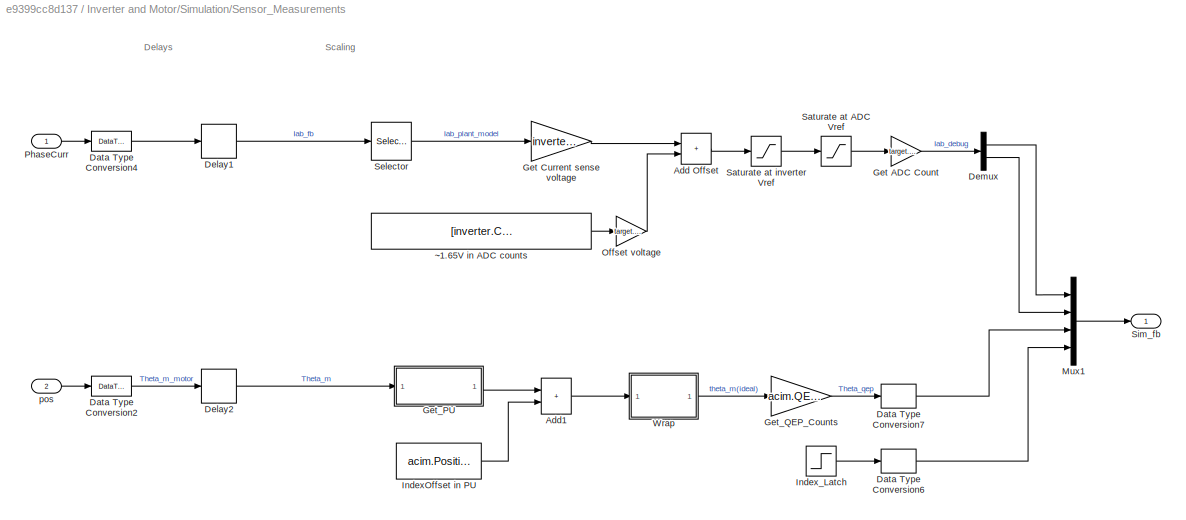
BLOCK [SubSystem] Inverter and Motor/Simulation/Sensor_Measurements
  Ports = [2, 1]
  RequestExecContextInheritance = off
BLOCK [Sum] Inverter and Motor/Simulation/Sensor_Measurements/Add Offset
  IconShape = rectangular
  Ports = [2, 1]
  RndMeth = Simplest
BLOCK [Sum] Inverter and Motor/Simulation/Sensor_Measurements/Add1
  IconShape = rectangular
  Ports = [2, 1]
  RndMeth = Simplest
BLOCK [DataTypeConversion] Inverter and Motor/Simulation/Sensor_Measurements/Data Type Conversion2
  OutDataTypeStr = single
  RndMeth = Simplest
  SaturateOnIntegerOverflow = off
BLOCK [DataTypeConversion] Inverter and Motor/Simulation/Sensor_Measurements/Data Type Conversion4
  OutDataTypeStr = single
  RndMeth = Simplest
  SaturateOnIntegerOverflow = off
BLOCK [DataTypeConversion] Inverter and Motor/Simulation/Sensor_Measurements/Data Type Conversion6
  OutDataTypeStr = uint16
  RndMeth = Simplest
  SaturateOnIntegerOverflow = off
BLOCK [DataTypeConversion] Inverter and Motor/Simulation/Sensor_Measurements/Data Type Conversion7
  OutDataTypeStr = uint16
  RndMeth = Simplest
  SaturateOnIntegerOverflow = off
BLOCK [Delay] Inverter and Motor/Simulation/Sensor_Measurements/Delay1
  DelayLength = PI_params.delay_Currents
  InputPortMap = u0
  Ports = [1, 1]
BLOCK [Delay] Inverter and Motor/Simulation/Sensor_Measurements/Delay2
  DelayLength = PI_params.delay_Position
  InputPortMap = u0
  Ports = [1, 1]
BLOCK [Demux] Inverter and Motor/Simulation/Sensor_Measurements/Demux
  Outputs = 2
  Ports = [1, 2]
BLOCK [Gain] Inverter and Motor/Simulation/Sensor_Measurements/Get ADC Count
  Gain = target.ADC_MaxCount/target.ADC_Vref
  OutDataTypeStr = uint16
  OutMax = target.ADC_MaxCount
  OutMin = 0
  RndMeth = Simplest
BLOCK [Gain] Inverter and Motor/Simulation/Sensor_Measurements/Get Current sense voltage
  Gain = inverter.invertingAmp * inverter.ISenseVoltPerAmp
  OutDataTypeStr = Inherit: Same as input
  RndMeth = Simplest
BLOCK [SubSystem] Inverter and Motor/Simulation/Sensor_Measurements/Get_PU 
  Ports = [1, 1]
  RequestExecContextInheritance = off
BLOCK [Constant] Inverter and Motor/Simulation/Sensor_Measurements/Get_PU /Constant2
  OutDataTypeStr = single
  SampleTime = -1
  Value = 2*pi
BLOCK [Gain] Inverter and Motor/Simulation/Sensor_Measurements/Get_PU /Get_PU
  Gain = 1/(2*pi)
  OutDataTypeStr = Inherit: Same as input
  RndMeth = Simplest
BLOCK [Math] Inverter and Motor/Simulation/Sensor_Measurements/Get_PU /Mod
  Operator = mod
  Ports = [2, 1]
BLOCK [Outport] Inverter and Motor/Simulation/Sensor_Measurements/Get_PU /PU
  VectorParamsAs1DForOutWhenUnconnected = off
BLOCK [Inport] Inverter and Motor/Simulation/Sensor_Measurements/Get_PU /rad
BLOCK [Gain] Inverter and Motor/Simulation/Sensor_Measurements/Get_QEP_Counts
  Gain = acim.QEPSlits*4
  OutDataTypeStr = uint16
  RndMeth = Simplest
BLOCK [Constant] Inverter and Motor/Simulation/Sensor_Measurements/IndexOffset in PU
  OutDataTypeStr = single
  SampleTime = -1
  Value = acim.PositionOffset
BLOCK [Step] Inverter and Motor/Simulation/Sensor_Measurements/Index_Latch
  SampleTime = Ts_motor
  Time = Ts_motor
BLOCK [Mux] Inverter and Motor/Simulation/Sensor_Measurements/Mux1
  DisplayOption = bar
  Ports = [4, 1]
BLOCK [Gain] Inverter and Motor/Simulation/Sensor_Measurements/Offset voltage
  Gain = target.ADC_Vref / target.ADC_MaxCount
  OutDataTypeStr = single
  RndMeth = Simplest
BLOCK [Inport] Inverter and Motor/Simulation/Sensor_Measurements/PhaseCurr
BLOCK [Saturate] Inverter and Motor/Simulation/Sensor_Measurements/Saturate at ADC Vref
  LowerLimit = 0
  UpperLimit = target.ADC_Vref
BLOCK [Saturate] Inverter and Motor/Simulation/Sensor_Measurements/Saturate at inverter Vref
  LowerLimit = 0
  UpperLimit = inverter.ISenseVref
BLOCK [Selector] Inverter and Motor/Simulation/Sensor_Measurements/Selector
  IndexOptions = Index vector (dialog)
  Indices = [1 2]
  InputPortWidth = 3
  OutputSizes = 1
  Ports = [1, 1]
BLOCK [Outport] Inverter and Motor/Simulation/Sensor_Measurements/Sim_fb
  VectorParamsAs1DForOutWhenUnconnected = off
BLOCK [SubSystem] Inverter and Motor/Simulation/Sensor_Measurements/Wrap
  Ports = [1, 1]
  RequestExecContextInheritance = off
BLOCK [Constant] Inverter and Motor/Simulation/Sensor_Measurements/Wrap/Constant2
  OutDataTypeStr = single
  SampleTime = -1
BLOCK [Math] Inverter and Motor/Simulation/Sensor_Measurements/Wrap/Mod
  Operator = mod
  Ports = [2, 1]
BLOCK [Inport] Inverter and Motor/Simulation/Sensor_Measurements/Wrap/in
BLOCK [Outport] Inverter and Motor/Simulation/Sensor_Measurements/Wrap/out
  VectorParamsAs1DForOutWhenUnconnected = off
BLOCK [Inport] Inverter and Motor/Simulation/Sensor_Measurements/pos
  Port = 2
BLOCK [Constant] Inverter and Motor/Simulation/Sensor_Measurements/~1.65V in ADC counts
  OutDataTypeStr = uint16
  SampleTime = -1
  Value = [inverter.CtSensAOffset inverter.CtSensBOffset]
BLOCK [RateTransition] RT1
  Deterministic = off
BLOCK [RateTransition] RT2
  Deterministic = off
BLOCK [RateTransition] RT3
  Deterministic = off
BLOCK [RateTransition] RT4
  Deterministic = off
  OutPortSampleTime = Ts_speed
BLOCK [SubSystem] Serial Receive
  Ports = [0, 0, 0, 1]
  RTWMemSecFuncExecute = code_ramfuncs
  RequestExecContextInheritance = off
  SystemSampleTime = 1e-3
BLOCK [DataStoreWrite] Serial Receive/Data Store Write
  DataStoreName = Enable
  IndexOptions = Index vector (dialog)
  Indices = 1
  OutputSizes = 1
  Ports = [1]
BLOCK [DataStoreWrite] Serial Receive/Data Store Write1
  DataStoreName = Debug_signals
  IndexOptions = Index vector (dialog)
  Indices = 1
  OutputSizes = 1
  Ports = [1]
BLOCK [DataStoreWrite] Serial Receive/Data Store Write2
  DataStoreName = Enable_fwc
  IndexOptions = Index vector (dialog)
  Indices = 1
  OutputSizes = 1
  Ports = [1]
BLOCK [DataStoreWrite] Serial Receive/Data Store Write3
  DataStoreName = Speed_ref
  IndexOptions = Index vector (dialog)
  Indices = 1
  OutputSizes = 1
  Ports = [1]
BLOCK [SubSystem] Serial Receive/Data_Conditioning_Rx
  Ports = [1, 2]
  RequestExecContextInheritance = off
  Variant = on
BLOCK [SubSystem] Serial Receive/Data_Conditioning_Rx/Data_Type_Float
  Ports = [1, 2]
  RequestExecContextInheritance = off
  VariantControl = isequal(dataType, 'single')
BLOCK [DataTypeConversion] Serial Receive/Data_Conditioning_Rx/Data_Type_Float/Data Type Conversion2
  OutDataTypeStr = uint16
  RndMeth = Simplest
  SaturateOnIntegerOverflow = off
BLOCK [Demux] Serial Receive/Data_Conditioning_Rx/Data_Type_Float/Demux
  Outputs = 2
  Ports = [1, 2]
BLOCK [Inport] Serial Receive/Data_Conditioning_Rx/Data_Type_Float/In1
BLOCK [Outport] Serial Receive/Data_Conditioning_Rx/Data_Type_Float/Out1
BLOCK [Outport] Serial Receive/Data_Conditioning_Rx/Data_Type_Float/Out2
  Port = 2
BLOCK [Inport] Serial Receive/Data_Conditioning_Rx/In1
BLOCK [Outport] Serial Receive/Data_Conditioning_Rx/Out1
BLOCK [Outport] Serial Receive/Data_Conditioning_Rx/Out2
  Port = 2
BLOCK [TriggerPort] Serial Receive/SCI_Rx_INT
  Ports = []
  StatesWhenEnabling = held
  TriggerType = function-call
  VariantControl = Variant
BLOCK [SubSystem] Serial Receive/Simulation
  Ports = [0, 1]
  RequestExecContextInheritance = off
BLOCK [DataTypeConversion] Serial Receive/Simulation/Data Type Conversion1
  OutDataTypeStr = uint16
  RndMeth = Simplest
  SaturateOnIntegerOverflow = off
BLOCK [DataTypeConversion] Serial Receive/Simulation/Data Type Conversion2
  OutDataTypeStr = dataType
  RndMeth = Simplest
  SaturateOnIntegerOverflow = off
BLOCK [SubSystem] Serial Receive/Simulation/Data_Conditioning_Tx
  Ports = [2, 1]
  RequestExecContextInheritance = off
  Variant = on
BLOCK [Outport] Serial Receive/Simulation/Data_Conditioning_Tx/Data
BLOCK [SubSystem] Serial Receive/Simulation/Data_Conditioning_Tx/Data_Type_Float
  Ports = [2, 1]
  RequestExecContextInheritance = off
  VariantControl = isequal(dataType, 'single')
BLOCK [Outport] Serial Receive/Simulation/Data_Conditioning_Tx/Data_Type_Float/Data
BLOCK [DataTypeConversion] Serial Receive/Simulation/Data_Conditioning_Tx/Data_Type_Float/Data Type Conversion2
  OutDataTypeStr = single
  RndMeth = Simplest
  SaturateOnIntegerOverflow = off
BLOCK [Inport] Serial Receive/Simulation/Data_Conditioning_Tx/Data_Type_Float/In1
BLOCK [Inport] Serial Receive/Simulation/Data_Conditioning_Tx/Data_Type_Float/In2
  Port = 2
BLOCK [Mux] Serial Receive/Simulation/Data_Conditioning_Tx/Data_Type_Float/Mux
  DisplayOption = bar
  Inputs = 2
  Ports = [2, 1]
BLOCK [Inport] Serial Receive/Simulation/Data_Conditioning_Tx/In1
BLOCK [Inport] Serial Receive/Simulation/Data_Conditioning_Tx/In2
  Port = 2
BLOCK [Constant] Serial Receive/Simulation/Debug_signals
  OutDataTypeStr = uint16
  SampleTime = -1
BLOCK [Step] Serial Receive/Simulation/Enable
  Time = 0.1
BLOCK [Constant] Serial Receive/Simulation/Enable_fwc
  OutDataTypeStr = uint16
  SampleTime = -1
  Value = 0
BLOCK [Outport] Serial Receive/Simulation/Out1
BLOCK [SubSystem] Serial Receive/Simulation/Parse
  Ports = [3, 1]
  RequestExecContextInheritance = off
BLOCK [Reference] Serial Receive/Simulation/Parse/Bitwise Operator  REF=simulink/Logic and Bit
Operations/Bitwise
Operator
  Ports = [1, 1]
  SourceBlock = simulink/Logic and Bit\nOperations/Bitwise\nOperator
  SourceProductBaseCode = SL
  SourceType = Bitwise Operator
BLOCK [Reference] Serial Receive/Simulation/Parse/Bitwise Operator1  REF=simulink/Logic and Bit
Operations/Bitwise
Operator
  Ports = [1, 1]
  SourceBlock = simulink/Logic and Bit\nOperations/Bitwise\nOperator
  SourceProductBaseCode = SL
  SourceType = Bitwise Operator
BLOCK [Reference] Serial Receive/Simulation/Parse/Bitwise Operator2  REF=simulink/Logic and Bit
Operations/Bitwise
Operator
  Ports = [1, 1]
  SourceBlock = simulink/Logic and Bit\nOperations/Bitwise\nOperator
  SourceProductBaseCode = SL
  SourceType = Bitwise Operator
BLOCK [Outport] Serial Receive/Simulation/Parse/Data
BLOCK [Inport] Serial Receive/Simulation/Parse/Debug_signals
  Port = 3
BLOCK [Inport] Serial Receive/Simulation/Parse/Enable_FWC
  Port = 2
BLOCK [Inport] Serial Receive/Simulation/Parse/Enable_PWM
BLOCK [ArithShift] Serial Receive/Simulation/Parse/Shift Arithmetic
  BitShiftNumber = -1
  InputPortMap = u0
  Ports = [1, 1]
BLOCK [ArithShift] Serial Receive/Simulation/Parse/Shift Arithmetic1
  BitShiftNumber = -4
  InputPortMap = u0
  Ports = [1, 1]
BLOCK [Sum] Serial Receive/Simulation/Parse/Sum
  IconShape = rectangular
  Inputs = |+++
  Ports = [3, 1]
BLOCK [Step] Serial Receive/Simulation/Reversal
  Time = 9
BLOCK [Step] Serial Receive/Simulation/Speed_Ref (rpm)
  After = -0.8*acim.N_rated
  Before = 0.8*acim.N_rated
  Time = 4
BLOCK [Switch] Serial Receive/Simulation/Switch
  Criteria = u2 > Threshold
  InputSameDT = off
  SaturateOnIntegerOverflow = off
BLOCK [Gain] Serial Receive/Simulation/rpm2PU
  Gain = 1/PU_System.N_base
  OutDataTypeStr = Inherit: Same as input
  RndMeth = Simplest
BLOCK [SubSystem] Serial Receive/unParse
  Ports = [1, 3]
  RequestExecContextInheritance = off
BLOCK [Reference] Serial Receive/unParse/Bitwise Operator  REF=simulink/Logic and Bit
Operations/Bitwise
Operator
  Ports = [1, 1]
  SourceBlock = simulink/Logic and Bit\nOperations/Bitwise\nOperator
  SourceProductBaseCode = SL
  SourceType = Bitwise Operator
BLOCK [Reference] Serial Receive/unParse/Bitwise Operator1  REF=simulink/Logic and Bit
Operations/Bitwise
Operator
  Ports = [1, 1]
  SourceBlock = simulink/Logic and Bit\nOperations/Bitwise\nOperator
  SourceProductBaseCode = SL
  SourceType = Bitwise Operator
BLOCK [Reference] Serial Receive/unParse/Bitwise Operator2  REF=simulink/Logic and Bit
Operations/Bitwise
Operator
  Ports = [1, 1]
  SourceBlock = simulink/Logic and Bit\nOperations/Bitwise\nOperator
  SourceProductBaseCode = SL
  SourceType = Bitwise Operator
BLOCK [Inport] Serial Receive/unParse/Data
BLOCK [DataTypeConversion] Serial Receive/unParse/Data Type Conversion3
  OutDataTypeStr = boolean
  RndMeth = Simplest
  SaturateOnIntegerOverflow = off
BLOCK [DataTypeConversion] Serial Receive/unParse/Data Type Conversion4
  NameLocation = left
  OutDataTypeStr = uint16
  RndMeth = Simplest
  SaturateOnIntegerOverflow = off
BLOCK [DataTypeConversion] Serial Receive/unParse/Data Type Conversion5
  OutDataTypeStr = boolean
  RndMeth = Simplest
  SaturateOnIntegerOverflow = off
BLOCK [Outport] Serial Receive/unParse/Debug_signals
  Port = 3
BLOCK [Outport] Serial Receive/unParse/Enable_FWC
  Port = 2
BLOCK [Outport] Serial Receive/unParse/Enable_PWM
BLOCK [ArithShift] Serial Receive/unParse/Shift Arithmetic
  BitShiftNumber = 1
  InputPortMap = u0
  Ports = [1, 1]
BLOCK [ArithShift] Serial Receive/unParse/Shift Arithmetic1
  BitShiftNumber = 4
  InputPortMap = u0
  Ports = [1, 1]
BLOCK [SubSystem] Simulation
  Ports = [0, 1]
  RequestExecContextInheritance = off
BLOCK [Reference] Simulation/ADCINT1  REF=simulink/Ports &
Subsystems/Function-Call
Generator
  Ports = [0, 1]
  SourceBlock = simulink/Ports &\nSubsystems/Function-Call\nGenerator
  SourceProductBaseCode = SL
  SourceType = Function-Call Generator
BLOCK [Outport] Simulation/Interrupt
BLOCK [Mux] Simulation/Mux
  DisplayOption = bar
  Inputs = 2
  Ports = [2, 1]
BLOCK [Reference] Simulation/SCI_Rx_INT  REF=simulink/Ports &
Subsystems/Function-Call
Generator
  Ports = [0, 1]
  SourceBlock = simulink/Ports &\nSubsystems/Function-Call\nGenerator
  SourceProductBaseCode = SL
  SourceType = Function-Call Generator
BLOCK [SubSystem] Speed Control
  Ports = [1, 1]
  RTWMemSecFuncExecute = code_ramfuncs
  RTWSystemCode = Nonreusable function
  RequestExecContextInheritance = off
  TreatAsAtomicUnit = on
BLOCK [Reference] Speed Control/ACIM Control Reference  REF=mcbcontrolslib/ACIM Control Reference
  Commented = on
  Ports = [2, 2]
  SourceBlock = mcbcontrolslib/ACIM Control Reference
  SourceProductBaseCode = MT
  SourceType = ACIM Control Reference
BLOCK [Reference] Speed Control/ACIM Control Reference1  REF=mcbcontrolslib/ACIM Control Reference
  Ports = [2, 2]
  SourceBlock = mcbcontrolslib/ACIM Control Reference
  SourceProductBaseCode = MT
  SourceType = ACIM Control Reference
BLOCK [DataStoreRead] Speed Control/Data Store Read
  Commented = on
  DataStoreName = Speed_ref
  IndexOptions = Index vector (dialog)
  Indices = 1
  OutputSizes = 1
  Ports = [0, 1]
BLOCK [DataStoreRead] Speed Control/Data Store Read1
  DataStoreName = Speed_ref
  IndexOptions = Index vector (dialog)
  Indices = 1
  OutputSizes = 1
  Ports = [0, 1]
BLOCK [Reference] Speed Control/Fuzzy Logic Controller  REF=fuzblock/Fuzzy Logic   (lib defined in mdl_858b3b3e7478)
Controller
  Ports = [1, 1]
  SourceBlock = fuzblock/Fuzzy Logic \nController
  SourceProductBaseCode = FL
  SourceType = Fuzzy Inference System
BLOCK [Outport] Speed Control/Idq_ref
  NameLocation = top
  VectorParamsAs1DForOutWhenUnconnected = off
BLOCK [Integrator] Speed Control/Integrator
  InitialCondition = Ts_speed
  Ports = [1, 1]
BLOCK [SubSystem] Speed Control/MATLAB Function
  Commented = on
  ErrorFcn = Stateflow.Translate.translate
  PermitHierarchicalResolution = ExplicitOnly
  Ports = [2, 1]
  RequestExecContextInheritance = off
  SFBlockType = MATLAB Function
  TreatAsAtomicUnit = on
BLOCK [Demux] Speed Control/MATLAB Function/ Demux 
  Outputs = 1
  Ports = [1, 1]
BLOCK [S-Function] Speed Control/MATLAB Function/ SFunction 
  EnableBusSupport = on
  FunctionName = sf_sfun
  PortCounts = [2 2]
  Ports = [2, 2]
  SFcnIsStateOwnerBlock = off
  SFunctionDeploymentMode = off
  Tag = Stateflow S-Function 2
BLOCK [Terminator] Speed Control/MATLAB Function/ Terminator 
BLOCK [Inport] Speed Control/MATLAB Function/E
BLOCK [Inport] Speed Control/MATLAB Function/I
  Port = 2
BLOCK [Outport] Speed Control/MATLAB Function/T_ref
BLOCK [Mux] Speed Control/Mux
  DisplayOption = bar
  Inputs = 2
  Ports = [2, 1]
BLOCK [Mux] Speed Control/Mux1
  DisplayOption = bar
  Inputs = 2
  Ports = [2, 1]
BLOCK [Mux] Speed Control/Mux2
  Commented = on
  DisplayOption = bar
  Inputs = 2
  Ports = [2, 1]
BLOCK [SubSystem] Speed Control/PI_Controller_Speed
  Commented = on
  Ports = [2, 1]
  RequestExecContextInheritance = off
BLOCK [DataStoreRead] Speed Control/PI_Controller_Speed/Data Store Read2
  DataStoreName = Enable
  IndexOptions = Index vector (dialog)
  Indices = 1
  OutputSizes = 1
  Ports = [0, 1]
BLOCK [Reference] Speed Control/PI_Controller_Speed/Discrete PI Controller with anti-windup & reset  REF=mcbcontrolslib/Discrete PI Controller 
with anti-windup & reset
  Ports = [5, 1]
  SourceBlock = mcbcontrolslib/Discrete PI Controller \nwith anti-windup & reset
  SourceProductBaseCode = MT
  SourceType = Discrete PI Controller with anti-windup and reset
BLOCK [Constant] Speed Control/PI_Controller_Speed/Ki1
  NameLocation = top
  OutDataTypeStr = dataType
  SampleTime = -1
  Value = PI_params.Ki_speed*Ts_speed
BLOCK [Constant] Speed Control/PI_Controller_Speed/Ki2
  NameLocation = top
  OutDataTypeStr = dataType
  SampleTime = -1
  Value = 0
BLOCK [Constant] Speed Control/PI_Controller_Speed/Kp1
  NameLocation = top
  OutDataTypeStr = dataType
  SampleTime = -1
  Value = PI_params.Kp_speed
BLOCK [Logic] Speed Control/PI_Controller_Speed/Logical Operator
  AllPortsSameDT = off
  IconShape = distinctive
  Operator = NOT
  OutDataTypeStr = boolean
  Ports = [1, 1]
BLOCK [Inport] Speed Control/PI_Controller_Speed/Speed_fb
  Port = 2
BLOCK [Inport] Speed Control/PI_Controller_Speed/Speed_ref
BLOCK [Sum] Speed Control/PI_Controller_Speed/Sum
  AccumDataTypeStr = Inherit: Same as first input
  Inputs = |+-
  Ports = [2, 1]
BLOCK [Outport] Speed Control/PI_Controller_Speed/T_ref
  VectorParamsAs1DForOutWhenUnconnected = off
BLOCK [Inport] Speed Control/Speed_fb
BLOCK [Reference] Speed Control/Zero_Cancellation  REF=mcbcontrolslib/IIR Filter
  Commented = on
  Ports = [1, 1]
  SourceBlock = mcbcontrolslib/IIR Filter
  SourceProductBaseCode = MT
  SourceType = IIR Filter
BLOCK [Reference] Speed Control/Zero_Cancellation1  REF=mcbcontrolslib/IIR Filter
  Ports = [1, 1]
  SourceBlock = mcbcontrolslib/IIR Filter
  SourceProductBaseCode = MT
  SourceType = IIR Filter
ANNOTATION (root): Global Variables
ANNOTATION Current Control: HW Driver Blocks
ANNOTATION Current Control/Input Scaling: Current Measurements
ANNOTATION Current Control/Input Scaling: Position & Speed Measurements
ANNOTATION Inverter and Motor/Simulation/Sensor_Measurements: Delays
ANNOTATION Inverter and Motor/Simulation/Sensor_Measurements: Scaling
LINE Current Control/Control_System/Clarke Transform:1 -> Current Control/Control_System/Park Transform:1
LINE Current Control/Control_System/Clarke Transform:2 -> Current Control/Control_System/Park Transform:2
LINE Current Control/Control_System/Current_Controllers/ACIM Feed Forward Control:1 -> Current Control/Control_System/Current_Controllers/Sum:2
LINE Current Control/Control_System/Current_Controllers/ACIM Feed Forward Control:2 -> Current Control/Control_System/Current_Controllers/Sum1:2
LINE Current Control/Control_System/Current_Controllers/ACIM Torque Estimator:1 -> Current Control/Control_System/Current_Controllers/Mux3:1
LINE Current Control/Control_System/Current_Controllers/ACIM Torque Estimator:2 -> Current Control/Control_System/Current_Controllers/Mux3:2
LINE Current Control/Control_System/Current_Controllers/DQ Limiter:1 -> Current Control/Control_System/Current_Controllers/Vd_ref:1
LINE Current Control/Control_System/Current_Controllers/DQ Limiter:2 -> Current Control/Control_System/Current_Controllers/Vq_ref:1
LINE Current Control/Control_System/Current_Controllers/DQ Limiter:3 -> Current Control/Control_System/Current_Controllers/IIR Filter:1
LINE Current Control/Control_System/Current_Controllers/Data Store Read:1 -> Current Control/Control_System/Current_Controllers/Mux4:1
LINE Current Control/Control_System/Current_Controllers/Demux:1 -> Current Control/Control_System/Current_Controllers/Sum2:1
NET Current Control/Control_System/Current_Controllers/Demux:2 -> Current Control/Control_System/Current_Controllers/Mux1:1, Current Control/Control_System/Current_Controllers/PI_Controller_Iq:1
LINE Current Control/Control_System/Current_Controllers/FW_Controller/Bypass_FWC:1 -> Current Control/Control_System/Current_Controllers/FW_Controller/Switch:3
LINE Current Control/Control_System/Current_Controllers/FW_Controller/Data Store Read2:1 -> Current Control/Control_System/Current_Controllers/FW_Controller/Logical Operator:1
LINE Current Control/Control_System/Current_Controllers/FW_Controller/Data Store Read:1 -> Current Control/Control_System/Current_Controllers/FW_Controller/Switch:2
LINE Current Control/Control_System/Current_Controllers/FW_Controller/Discrete PI Controller with anti-windup & reset:1 -> Current Control/Control_System/Current_Controllers/FW_Controller/Switch:1
LINE Current Control/Control_System/Current_Controllers/FW_Controller/Ki1:1 -> Current Control/Control_System/Current_Controllers/FW_Controller/Discrete PI Controller with anti-windup & reset:5
LINE Current Control/Control_System/Current_Controllers/FW_Controller/Ki:1 -> Current Control/Control_System/Current_Controllers/FW_Controller/Discrete PI Controller with anti-windup & reset:3
LINE Current Control/Control_System/Current_Controllers/FW_Controller/Kp:1 -> Current Control/Control_System/Current_Controllers/FW_Controller/Discrete PI Controller with anti-windup & reset:2
LINE Current Control/Control_System/Current_Controllers/FW_Controller/Logical Operator:1 -> Current Control/Control_System/Current_Controllers/FW_Controller/Discrete PI Controller with anti-windup & reset:4
LINE Current Control/Control_System/Current_Controllers/FW_Controller/Mux:1 -> Current Control/Control_System/Current_Controllers/FW_Controller/Terminator:1
LINE Current Control/Control_System/Current_Controllers/FW_Controller/Sum:1 -> Current Control/Control_System/Current_Controllers/FW_Controller/Discrete PI Controller with anti-windup & reset:1
LINE Current Control/Control_System/Current_Controllers/FW_Controller/Switch:1 -> Current Control/Control_System/Current_Controllers/FW_Controller/Id_fwc:1
NET Current Control/Control_System/Current_Controllers/FW_Controller/Vmax_fb:1 -> Current Control/Control_System/Current_Controllers/FW_Controller/Mux:2, Current Control/Control_System/Current_Controllers/FW_Controller/Sum:2
NET Current Control/Control_System/Current_Controllers/FW_Controller/Vmax_ref:1 -> Current Control/Control_System/Current_Controllers/FW_Controller/Mux:1, Current Control/Control_System/Current_Controllers/FW_Controller/Sum:1
LINE Current Control/Control_System/Current_Controllers/FW_Controller:1 -> Current Control/Control_System/Current_Controllers/Sum2:2
LINE Current Control/Control_System/Current_Controllers/From1:1 -> Current Control/Control_System/Current_Controllers/Mux2:3
LINE Current Control/Control_System/Current_Controllers/From:1 -> Current Control/Control_System/Current_Controllers/Mux2:2
LINE Current Control/Control_System/Current_Controllers/IIR Filter:1 -> Current Control/Control_System/Current_Controllers/Unit Delay:1
NET Current Control/Control_System/Current_Controllers/Id_fb:1 -> Current Control/Control_System/Current_Controllers/ACIM Feed Forward Control:1, Current Control/Control_System/Current_Controllers/ACIM Torque Estimator:1, Current Control/Control_System/Current_Controllers/Mux:2, Current Control/Control_System/Current_Controllers/PI_Controller_Id:2
LINE Current Control/Control_System/Current_Controllers/Idq_ref:1 -> Current Control/Control_System/Current_Controllers/Demux:1
NET Current Control/Control_System/Current_Controllers/Iq_fb:1 -> Current Control/Control_System/Current_Controllers/ACIM Feed Forward Control:2, Current Control/Control_System/Current_Controllers/ACIM Torque Estimator:2, Current Control/Control_System/Current_Controllers/Mux1:2, Current Control/Control_System/Current_Controllers/PI_Controller_Iq:2
LINE Current Control/Control_System/Current_Controllers/Mux1:1 -> Current Control/Control_System/Current_Controllers/Goto1:1
LINE Current Control/Control_System/Current_Controllers/Mux2:1 -> Current Control/Control_System/Current_Controllers/Debug:1
LINE Current Control/Control_System/Current_Controllers/Mux3:1 -> Current Control/Control_System/Current_Controllers/Mux2:4
NET Current Control/Control_System/Current_Controllers/Mux4:1 -> Current Control/Control_System/Current_Controllers/Mux2:1, Current Control/Control_System/Current_Controllers/Speed Control:1
LINE Current Control/Control_System/Current_Controllers/Mux:1 -> Current Control/Control_System/Current_Controllers/Goto:1
LINE Current Control/Control_System/Current_Controllers/PI_Controller_Id/Data Store Read1:1 -> Current Control/Control_System/Current_Controllers/PI_Controller_Id/Logical Operator:1
LINE Current Control/Control_System/Current_Controllers/PI_Controller_Id/Discrete PI Controller with anti-windup & reset:1 -> Current Control/Control_System/Current_Controllers/PI_Controller_Id/Vd_ref:1
LINE Current Control/Control_System/Current_Controllers/PI_Controller_Id/I_fb:1 -> Current Control/Control_System/Current_Controllers/PI_Controller_Id/Sum:2
LINE Current Control/Control_System/Current_Controllers/PI_Controller_Id/I_ref:1 -> Current Control/Control_System/Current_Controllers/PI_Controller_Id/Sum:1
LINE Current Control/Control_System/Current_Controllers/PI_Controller_Id/Initial_Condition:1 -> Current Control/Control_System/Current_Controllers/PI_Controller_Id/Discrete PI Controller with anti-windup & reset:5
LINE Current Control/Control_System/Current_Controllers/PI_Controller_Id/Ki:1 -> Current Control/Control_System/Current_Controllers/PI_Controller_Id/Discrete PI Controller with anti-windup & reset:3
LINE Current Control/Control_System/Current_Controllers/PI_Controller_Id/Kp:1 -> Current Control/Control_System/Current_Controllers/PI_Controller_Id/Discrete PI Controller with anti-windup & reset:2
LINE Current Control/Control_System/Current_Controllers/PI_Controller_Id/Logical Operator:1 -> Current Control/Control_System/Current_Controllers/PI_Controller_Id/Discrete PI Controller with anti-windup & reset:4
LINE Current Control/Control_System/Current_Controllers/PI_Controller_Id/Sum:1 -> Current Control/Control_System/Current_Controllers/PI_Controller_Id/Discrete PI Controller with anti-windup & reset:1
LINE Current Control/Control_System/Current_Controllers/PI_Controller_Id:1 -> Current Control/Control_System/Current_Controllers/Sum:1
LINE Current Control/Control_System/Current_Controllers/PI_Controller_Iq/Data Store Read1:1 -> Current Control/Control_System/Current_Controllers/PI_Controller_Iq/Logical Operator:1
LINE Current Control/Control_System/Current_Controllers/PI_Controller_Iq/Discrete PI Controller with anti-windup & reset:1 -> Current Control/Control_System/Current_Controllers/PI_Controller_Iq/Vq_ref:1
LINE Current Control/Control_System/Current_Controllers/PI_Controller_Iq/I_fb:1 -> Current Control/Control_System/Current_Controllers/PI_Controller_Iq/Sum:2
LINE Current Control/Control_System/Current_Controllers/PI_Controller_Iq/I_ref:1 -> Current Control/Control_System/Current_Controllers/PI_Controller_Iq/Sum:1
LINE Current Control/Control_System/Current_Controllers/PI_Controller_Iq/Initial_Condition:1 -> Current Control/Control_System/Current_Controllers/PI_Controller_Iq/Discrete PI Controller with anti-windup & reset:5
LINE Current Control/Control_System/Current_Controllers/PI_Controller_Iq/Ki:1 -> Current Control/Control_System/Current_Controllers/PI_Controller_Iq/Discrete PI Controller with anti-windup & reset:3
LINE Current Control/Control_System/Current_Controllers/PI_Controller_Iq/Kp:1 -> Current Control/Control_System/Current_Controllers/PI_Controller_Iq/Discrete PI Controller with anti-windup & reset:2
LINE Current Control/Control_System/Current_Controllers/PI_Controller_Iq/Logical Operator:1 -> Current Control/Control_System/Current_Controllers/PI_Controller_Iq/Discrete PI Controller with anti-windup & reset:4
LINE Current Control/Control_System/Current_Controllers/PI_Controller_Iq/Sum:1 -> Current Control/Control_System/Current_Controllers/PI_Controller_Iq/Discrete PI Controller with anti-windup & reset:1
LINE Current Control/Control_System/Current_Controllers/PI_Controller_Iq:1 -> Current Control/Control_System/Current_Controllers/Sum1:1
NET Current Control/Control_System/Current_Controllers/Saturation:1 -> Current Control/Control_System/Current_Controllers/Mux:1, Current Control/Control_System/Current_Controllers/PI_Controller_Id:1
LINE Current Control/Control_System/Current_Controllers/Sum1:1 -> Current Control/Control_System/Current_Controllers/DQ Limiter:2
LINE Current Control/Control_System/Current_Controllers/Sum2:1 -> Current Control/Control_System/Current_Controllers/Saturation:1
LINE Current Control/Control_System/Current_Controllers/Sum:1 -> Current Control/Control_System/Current_Controllers/DQ Limiter:1
LINE Current Control/Control_System/Current_Controllers/Unit Delay:1 -> Current Control/Control_System/Current_Controllers/FW_Controller:2
LINE Current Control/Control_System/Current_Controllers/Vmax_ref:1 -> Current Control/Control_System/Current_Controllers/FW_Controller:1
NET Current Control/Control_System/Current_Controllers/Wm_fb:1 -> Current Control/Control_System/Current_Controllers/ACIM Feed Forward Control:3, Current Control/Control_System/Current_Controllers/ACIM Torque Estimator:3, Current Control/Control_System/Current_Controllers/Mux4:2
LINE Current Control/Control_System/Current_Controllers:1 -> Current Control/Control_System/Inverse Park Transform:1
LINE Current Control/Control_System/Current_Controllers:2 -> Current Control/Control_System/Inverse Park Transform:2
LINE Current Control/Control_System/Current_Controllers:3 -> Current Control/Control_System/Mux3:1
LINE Current Control/Control_System/Demux1:1 -> Current Control/Control_System/Clarke Transform:1
LINE Current Control/Control_System/Demux1:2 -> Current Control/Control_System/Clarke Transform:2
LINE Current Control/Control_System/From1:1 -> Current Control/Control_System/Inverse Park Transform:4
LINE Current Control/Control_System/From:1 -> Current Control/Control_System/Inverse Park Transform:3
LINE Current Control/Control_System/Iab_meas_PU1:1 -> Current Control/Control_System/Mux3:2
LINE Current Control/Control_System/Iab_meas_PU:1 -> Current Control/Control_System/Demux1:1
LINE Current Control/Control_System/Idq_ref1:1 -> Current Control/Control_System/Position_Computation:2
LINE Current Control/Control_System/Idq_ref:1 -> Current Control/Control_System/Current_Controllers:1
LINE Current Control/Control_System/Inverse Park Transform:1 -> Current Control/Control_System/Space Vector Generator:1
LINE Current Control/Control_System/Inverse Park Transform:2 -> Current Control/Control_System/Space Vector Generator:2
LINE Current Control/Control_System/Mux1:1 -> Current Control/Control_System/Vabc_ref:1
LINE Current Control/Control_System/Mux3:1 -> Current Control/Control_System/Debug:1
LINE Current Control/Control_System/Park Transform:1 -> Current Control/Control_System/Current_Controllers:2
LINE Current Control/Control_System/Park Transform:2 -> Current Control/Control_System/Current_Controllers:3
LINE Current Control/Control_System/Position_Computation/ACIM Slip Speed Estimator:1 -> Current Control/Control_System/Position_Computation/Sum:2
LINE Current Control/Control_System/Position_Computation/Data Store Read3:1 -> Current Control/Control_System/Position_Computation/NOT:1
LINE Current Control/Control_System/Position_Computation/Demux2:1 -> Current Control/Control_System/Position_Computation/ACIM Slip Speed Estimator:1
LINE Current Control/Control_System/Position_Computation/Demux2:2 -> Current Control/Control_System/Position_Computation/ACIM Slip Speed Estimator:2
LINE Current Control/Control_System/Position_Computation/Gain3:1 -> Current Control/Control_System/Position_Computation/Position Generator:1
LINE Current Control/Control_System/Position_Computation/Idq_ref:1 -> Current Control/Control_System/Position_Computation/Demux2:1
LINE Current Control/Control_System/Position_Computation/NOT:1 -> Current Control/Control_System/Position_Computation/Position Generator:2
LINE Current Control/Control_System/Position_Computation/Position Generator:1 -> Current Control/Control_System/Position_Computation/Unit Delay:1
LINE Current Control/Control_System/Position_Computation/Speed_fb:1 -> Current Control/Control_System/Position_Computation/Sum:1
LINE Current Control/Control_System/Position_Computation/Sum:1 -> Current Control/Control_System/Position_Computation/Gain3:1
LINE Current Control/Control_System/Position_Computation/Unit Delay:1 -> Current Control/Control_System/Position_Computation/theta_e:1
LINE Current Control/Control_System/Position_Computation:1 -> Current Control/Control_System/Sine-Cosine Lookup:1
NET Current Control/Control_System/Sine-Cosine Lookup:1 -> Current Control/Control_System/Goto:1, Current Control/Control_System/Park Transform:3
NET Current Control/Control_System/Sine-Cosine Lookup:2 -> Current Control/Control_System/Goto1:1, Current Control/Control_System/Park Transform:4
LINE Current Control/Control_System/Space Vector Generator:1 -> Current Control/Control_System/Mux1:1
LINE Current Control/Control_System/Space Vector Generator:2 -> Current Control/Control_System/Mux1:2
LINE Current Control/Control_System/Space Vector Generator:3 -> Current Control/Control_System/Mux1:3
LINE Current Control/Control_System/Speed_fb1:1 -> Current Control/Control_System/Position_Computation:1
LINE Current Control/Control_System/Speed_fb:1 -> Current Control/Control_System/Current_Controllers:4
LINE Current Control/Control_System:1 -> Current Control/Output Scaling:1
LINE Current Control/Control_System:2 -> Current Control/Debug_signals:1
LINE Current Control/Debug_signals/Data Store Read:1 -> Current Control/Debug_signals/Multiport Switch:1
LINE Current Control/Debug_signals/Data:1 -> Current Control/Debug_signals/Selector:1
LINE Current Control/Debug_signals/Demux:1 -> Current Control/Debug_signals/Debug_signal_1:1
LINE Current Control/Debug_signals/Demux:2 -> Current Control/Debug_signals/Debug_signal_2:1
LINE Current Control/Debug_signals/Ia_Ib:1 -> Current Control/Debug_signals/Multiport Switch:6
LINE Current Control/Debug_signals/Id_control:1 -> Current Control/Debug_signals/Multiport Switch:3
LINE Current Control/Debug_signals/Iq_control:1 -> Current Control/Debug_signals/Multiport Switch:4
LINE Current Control/Debug_signals/Multiport Switch:1 -> Current Control/Debug_signals/Selector:2
LINE Current Control/Debug_signals/Selector:1 -> Current Control/Debug_signals/Demux:1
LINE Current Control/Debug_signals/Torque_and_Power:1 -> Current Control/Debug_signals/Multiport Switch:5
LINE Current Control/Debug_signals/speed_control:1 -> Current Control/Debug_signals/Multiport Switch:2
LINE Current Control/Debug_signals:1 -> Current Control/Mux1:1
LINE Current Control/Debug_signals:2 -> Current Control/Mux1:2
LINE Current Control/Demux1:1 -> Current Control/Input Scaling:1
LINE Current Control/Demux1:2 -> Current Control/Input Scaling:2
LINE Current Control/Demux1:3 -> Current Control/Input Scaling:3
LINE Current Control/Demux1:4 -> Current Control/Input Scaling:4
LINE Current Control/Feedbacks_sim:1 -> Current Control/HW_Inputs:1
LINE Current Control/HW_Inputs/Sensor Driver Blocks (codegen)/ADC_B_IN2:1 -> Current Control/HW_Inputs/Sensor Driver Blocks (codegen)/Mux1:2
LINE Current Control/HW_Inputs/Sensor Driver Blocks (codegen)/ADC_C_IN2:1 -> Current Control/HW_Inputs/Sensor Driver Blocks (codegen)/Mux1:1
LINE Current Control/HW_Inputs/Sensor Driver Blocks (codegen)/Mux1:1 -> Current Control/HW_Inputs/Sensor Driver Blocks (codegen)/Out:1
LINE Current Control/HW_Inputs/Sensor Driver Blocks (codegen)/Optional_Read_SPI/Data Type Conversion1:1 -> Current Control/HW_Inputs/Sensor Driver Blocks (codegen)/Optional_Read_SPI/Read_SPI:1
LINE Current Control/HW_Inputs/Sensor Driver Blocks (codegen)/Optional_Read_SPI/Mux3:1 -> Current Control/HW_Inputs/Sensor Driver Blocks (codegen)/Optional_Read_SPI/Data Type Conversion1:1
LINE Current Control/HW_Inputs/Sensor Driver Blocks (codegen)/Optional_Read_SPI/Read_ADC_Gain:1 -> Current Control/HW_Inputs/Sensor Driver Blocks (codegen)/Optional_Read_SPI/SPI Master Transfer2:1
LINE Current Control/HW_Inputs/Sensor Driver Blocks (codegen)/Optional_Read_SPI/Read_PWM_mode:1 -> Current Control/HW_Inputs/Sensor Driver Blocks (codegen)/Optional_Read_SPI/SPI Master Transfer5:1
LINE Current Control/HW_Inputs/Sensor Driver Blocks (codegen)/Optional_Read_SPI/SPI Master Transfer2:1 -> Current Control/HW_Inputs/Sensor Driver Blocks (codegen)/Optional_Read_SPI/Mux3:2
LINE Current Control/HW_Inputs/Sensor Driver Blocks (codegen)/Optional_Read_SPI/SPI Master Transfer5:1 -> Current Control/HW_Inputs/Sensor Driver Blocks (codegen)/Optional_Read_SPI/Mux3:1
LINE Current Control/HW_Inputs/Sensor Driver Blocks (codegen)/Sim:1 -> Current Control/HW_Inputs/Sensor Driver Blocks (codegen)/Terminator:1
LINE Current Control/HW_Inputs/Sensor Driver Blocks (codegen)/eQEP:1 -> Current Control/HW_Inputs/Sensor Driver Blocks (codegen)/Mux1:3
LINE Current Control/HW_Inputs/Sensor Driver Blocks (codegen)/eQEP:2 -> Current Control/HW_Inputs/Sensor Driver Blocks (codegen)/Mux1:4
LINE Current Control/HW_Inputs/Sensor Driver Blocks (sim)/Sim:1 -> Current Control/HW_Inputs/Sensor Driver Blocks (sim)/Out:1
LINE Current Control/HW_Inputs:1 -> Current Control/Demux1:1
LINE Current Control/Idq_ref:1 -> Current Control/Control_System:1
LINE Current Control/Input Scaling/Calculate Phase Currents/Add:1 -> Current Control/Input Scaling/Calculate Phase Currents/Data_Type:1
LINE Current Control/Input Scaling/Calculate Phase Currents/Data Store Read1:1 -> Current Control/Input Scaling/Calculate Phase Currents/Mux1:1
LINE Current Control/Input Scaling/Calculate Phase Currents/Data Store Read2:1 -> Current Control/Input Scaling/Calculate Phase Currents/Mux1:2
LINE Current Control/Input Scaling/Calculate Phase Currents/Data Type Conversion:1 -> Current Control/Input Scaling/Calculate Phase Currents/Add:2
LINE Current Control/Input Scaling/Calculate Phase Currents/Data_Type/Data_Type_Float/Get ADC Voltage:1 -> Current Control/Input Scaling/Calculate Phase Currents/Data_Type/Data_Type_Float/Get Currents:1
LINE Current Control/Input Scaling/Calculate Phase Currents/Data_Type/Data_Type_Float/Get Currents:1 -> Current Control/Input Scaling/Calculate Phase Currents/Data_Type/Data_Type_Float/PU_Conversion:1
LINE Current Control/Input Scaling/Calculate Phase Currents/Data_Type/Data_Type_Float/In1:1 -> Current Control/Input Scaling/Calculate Phase Currents/Data_Type/Data_Type_Float/Get ADC Voltage:1
LINE Current Control/Input Scaling/Calculate Phase Currents/Data_Type/Data_Type_Float/PU_Conversion:1 -> Current Control/Input Scaling/Calculate Phase Currents/Data_Type/Data_Type_Float/Out1:1
LINE Current Control/Input Scaling/Calculate Phase Currents/Data_Type:1 -> Current Control/Input Scaling/Calculate Phase Currents/Inverting // Non-inverting Current measurement amplifieer:1
LINE Current Control/Input Scaling/Calculate Phase Currents/Ia_ADC:1 -> Current Control/Input Scaling/Calculate Phase Currents/Mux:1
LINE Current Control/Input Scaling/Calculate Phase Currents/Ib_ADC:1 -> Current Control/Input Scaling/Calculate Phase Currents/Mux:2
LINE Current Control/Input Scaling/Calculate Phase Currents/Inverting // Non-inverting Current measurement amplifieer:1 -> Current Control/Input Scaling/Calculate Phase Currents/Iab_meas_PU:1
LINE Current Control/Input Scaling/Calculate Phase Currents/Mux1:1 -> Current Control/Input Scaling/Calculate Phase Currents/Add:1
LINE Current Control/Input Scaling/Calculate Phase Currents/Mux:1 -> Current Control/Input Scaling/Calculate Phase Currents/Data Type Conversion:1
LINE Current Control/Input Scaling/Calculate Phase Currents:1 -> Current Control/Input Scaling/Iab_meas_PU:1
LINE Current Control/Input Scaling/Calculate position and speed/IIR Filter:1 -> Current Control/Input Scaling/Calculate position and speed/Mux:2
LINE Current Control/Input Scaling/Calculate position and speed/IndexOffset:1 -> Current Control/Input Scaling/Calculate position and speed/Mechanical to Electrical Position:2
LINE Current Control/Input Scaling/Calculate position and speed/Mechanical to Electrical Position:1 -> Current Control/Input Scaling/Calculate position and speed/Mux:1
LINE Current Control/Input Scaling/Calculate position and speed/Mux:1 -> Current Control/Input Scaling/Calculate position and speed/Pos//Speed:1
LINE Current Control/Input Scaling/Calculate position and speed/QEP_Index_Latch:1 -> Current Control/Input Scaling/Calculate position and speed/Quadrature Decoder:2
LINE Current Control/Input Scaling/Calculate position and speed/QEP_Position_Count:1 -> Current Control/Input Scaling/Calculate position and speed/Quadrature Decoder:1
NET Current Control/Input Scaling/Calculate position and speed/Quadrature Decoder:1 -> Current Control/Input Scaling/Calculate position and speed/Mechanical to Electrical Position:1, Current Control/Input Scaling/Calculate position and speed/Speed Measurement:1
LINE Current Control/Input Scaling/Calculate position and speed/Speed Measurement:1 -> Current Control/Input Scaling/Calculate position and speed/IIR Filter:1
LINE Current Control/Input Scaling/Calculate position and speed:1 -> Current Control/Input Scaling/Demux:1
LINE Current Control/Input Scaling/Demux:1 -> Current Control/Input Scaling/Terminator:1
LINE Current Control/Input Scaling/Demux:2 -> Current Control/Input Scaling/Speed_PU:1
LINE Current Control/Input Scaling/Ia_ADC:1 -> Current Control/Input Scaling/Calculate Phase Currents:1
LINE Current Control/Input Scaling/Ib_ADC:1 -> Current Control/Input Scaling/Calculate Phase Currents:2
LINE Current Control/Input Scaling/QEP_Index_Latch:1 -> Current Control/Input Scaling/Calculate position and speed:2
LINE Current Control/Input Scaling/QEP_Position_Count:1 -> Current Control/Input Scaling/Calculate position and speed:1
LINE Current Control/Input Scaling:1 -> Current Control/Control_System:2
NET Current Control/Input Scaling:2 -> Current Control/Control_System:3, Current Control/Speed_fb:1
LINE Current Control/Inverter (Simulation)/Demux:1 -> Current Control/Inverter (Simulation)/Mux:1
LINE Current Control/Inverter (Simulation)/Demux:2 -> Current Control/Inverter (Simulation)/Mux:2
LINE Current Control/Inverter (Simulation)/Demux:3 -> Current Control/Inverter (Simulation)/Mux:3
LINE Current Control/Inverter (Simulation)/Demux:4 -> Current Control/Inverter (Simulation)/Switch1:2
LINE Current Control/Inverter (Simulation)/Inverter Signals:1 -> Current Control/Inverter (Simulation)/Demux:1
LINE Current Control/Inverter (Simulation)/Mux2:1 -> Current Control/Inverter (Simulation)/Switch1:3
NET Current Control/Inverter (Simulation)/Mux:1 -> Current Control/Inverter (Simulation)/Data Type Duplicate:1, Current Control/Inverter (Simulation)/Switch1:1
LINE Current Control/Inverter (Simulation)/Switch1:1 -> Current Control/Inverter (Simulation)/DutyCycles:1
NET Current Control/Inverter (Simulation)/stop:1 -> Current Control/Inverter (Simulation)/Data Type Duplicate:2, Current Control/Inverter (Simulation)/Mux2:1, Current Control/Inverter (Simulation)/Mux2:2, Current Control/Inverter (Simulation)/Mux2:3
LINE Current Control/Inverter (Simulation):1 -> Current Control/Duty_Cycles:1
LINE Current Control/Mux1:1 -> Current Control/SCI (Simulation):1
LINE Current Control/Mux:1 -> Current Control/Inverter (Simulation):1
LINE Current Control/Output Scaling/Constant:1 -> Current Control/Output Scaling/Sum:2
LINE Current Control/Output Scaling/Data Type Conversion:1 -> Current Control/Output Scaling/PWM_Enable:1
LINE Current Control/Output Scaling/Enable:1 -> Current Control/Output Scaling/Data Type Conversion:1
LINE Current Control/Output Scaling/One_by_Two:1 -> Current Control/Output Scaling/Sum:1
LINE Current Control/Output Scaling/Sum:1 -> Current Control/Output Scaling/PWM_Duty_Cycles:1
LINE Current Control/Output Scaling/Vabc_ref:1 -> Current Control/Output Scaling/One_by_Two:1
LINE Current Control/Output Scaling:1 -> Current Control/Mux:1
LINE Current Control/Output Scaling:2 -> Current Control/Mux:2
LINE Current Control/SCI (Simulation)/Demux:1 -> Current Control/SCI (Simulation)/Terminator1:1
LINE Current Control/SCI (Simulation)/Demux:2 -> Current Control/SCI (Simulation)/Terminator2:1
LINE Current Control/SCI (Simulation)/SCI_Data:1 -> Current Control/SCI (Simulation)/Demux:1
LINE Current Control:1 -> RT3:1
LINE Current Control:2 -> RT4:1
LINE Demux:1 -> Current Control:trigger
LINE Demux:2 -> Serial Receive:trigger
LINE From1:1 -> RT2:1
LINE Inverter and Motor/Duty_Cycles:1 -> Inverter and Motor/Simulation:1
LINE Inverter and Motor/Simulation/Duty_Cycles:1 -> Inverter and Motor/Simulation/Motor and Inverter:1
LINE Inverter and Motor/Simulation/Load_Profile (Torque)/Data Type Conversion:1 -> Inverter and Motor/Simulation/Load_Profile (Torque)/IIR Filter:1
LINE Inverter and Motor/Simulation/Load_Profile (Torque)/IIR Filter:1 -> Inverter and Motor/Simulation/Load_Profile (Torque)/Load_Trq:1
LINE Inverter and Motor/Simulation/Load_Profile (Torque)/Reversal:1 -> Inverter and Motor/Simulation/Load_Profile (Torque)/Switch:2
LINE Inverter and Motor/Simulation/Load_Profile (Torque)/Switch:1 -> Inverter and Motor/Simulation/Load_Profile (Torque)/Data Type Conversion:1
LINE Inverter and Motor/Simulation/Load_Profile (Torque)/T_load1:1 -> Inverter and Motor/Simulation/Load_Profile (Torque)/Switch:1
LINE Inverter and Motor/Simulation/Load_Profile (Torque)/T_load:1 -> Inverter and Motor/Simulation/Load_Profile (Torque)/Switch:3
LINE Inverter and Motor/Simulation/Load_Profile (Torque):1 -> Inverter and Motor/Simulation/Motor and Inverter:2
LINE Inverter and Motor/Simulation/Motor and Inverter/Bus Selector:1 -> Inverter and Motor/Simulation/Motor and Inverter/Theta:1
LINE Inverter and Motor/Simulation/Motor and Inverter/Gain:1 -> Inverter and Motor/Simulation/Motor and Inverter/Terminator1:1
LINE Inverter and Motor/Simulation/Motor and Inverter/Induction Motor:1 -> Inverter and Motor/Simulation/Motor and Inverter/RT3:1
LINE Inverter and Motor/Simulation/Motor and Inverter/Induction Motor:2 -> Inverter and Motor/Simulation/Motor and Inverter/RT1:1
LINE Inverter and Motor/Simulation/Motor and Inverter/Induction Motor:3 -> Inverter and Motor/Simulation/Motor and Inverter/Gain:1
LINE Inverter and Motor/Simulation/Motor and Inverter/Inverter/Average-Value Inverter:1 -> Inverter and Motor/Simulation/Motor and Inverter/Inverter/Vabc:1
LINE Inverter and Motor/Simulation/Motor and Inverter/Inverter/Constant2:1 -> Inverter and Motor/Simulation/Motor and Inverter/Inverter/Average-Value Inverter:2
LINE Inverter and Motor/Simulation/Motor and Inverter/Inverter/Data Type Conversion1:1 -> Inverter and Motor/Simulation/Motor and Inverter/Inverter/Average-Value Inverter:1
LINE Inverter and Motor/Simulation/Motor and Inverter/Inverter/Duty_abc:1 -> Inverter and Motor/Simulation/Motor and Inverter/Inverter/Data Type Conversion1:1
LINE Inverter and Motor/Simulation/Motor and Inverter/Inverter:1 -> Inverter and Motor/Simulation/Motor and Inverter/Rate Transition:1
LINE Inverter and Motor/Simulation/Motor and Inverter/Load:1 -> Inverter and Motor/Simulation/Motor and Inverter/Rate Transition2:1
LINE Inverter and Motor/Simulation/Motor and Inverter/RT1:1 -> Inverter and Motor/Simulation/Motor and Inverter/Iabc:1
LINE Inverter and Motor/Simulation/Motor and Inverter/RT3:1 -> Inverter and Motor/Simulation/Motor and Inverter/Bus Selector:1
LINE Inverter and Motor/Simulation/Motor and Inverter/Rate Transition1:1 -> Inverter and Motor/Simulation/Motor and Inverter/Induction Motor:1
LINE Inverter and Motor/Simulation/Motor and Inverter/Rate Transition2:1 -> Inverter and Motor/Simulation/Motor and Inverter/Rate Transition1:1
LINE Inverter and Motor/Simulation/Motor and Inverter/Rate Transition3:1 -> Inverter and Motor/Simulation/Motor and Inverter/Inverter:1
LINE Inverter and Motor/Simulation/Motor and Inverter/Rate Transition:1 -> Inverter and Motor/Simulation/Motor and Inverter/Induction Motor:2
LINE Inverter and Motor/Simulation/Motor and Inverter/Vabc_In_PU:1 -> Inverter and Motor/Simulation/Motor and Inverter/Rate Transition3:1
LINE Inverter and Motor/Simulation/Motor and Inverter:1 -> Inverter and Motor/Simulation/RT1:1
LINE Inverter and Motor/Simulation/Motor and Inverter:2 -> Inverter and Motor/Simulation/RT3:1
LINE Inverter and Motor/Simulation/RT1:1 -> Inverter and Motor/Simulation/Sensor_Measurements:1
LINE Inverter and Motor/Simulation/RT3:1 -> Inverter and Motor/Simulation/Sensor_Measurements:2
LINE Inverter and Motor/Simulation/Sensor_Measurements/Add Offset:1 -> Inverter and Motor/Simulation/Sensor_Measurements/Saturate at inverter Vref:1
LINE Inverter and Motor/Simulation/Sensor_Measurements/Add1:1 -> Inverter and Motor/Simulation/Sensor_Measurements/Wrap:1
LINE Inverter and Motor/Simulation/Sensor_Measurements/Data Type Conversion2:1 -> Inverter and Motor/Simulation/Sensor_Measurements/Delay2:1
LINE Inverter and Motor/Simulation/Sensor_Measurements/Data Type Conversion4:1 -> Inverter and Motor/Simulation/Sensor_Measurements/Delay1:1
LINE Inverter and Motor/Simulation/Sensor_Measurements/Data Type Conversion6:1 -> Inverter and Motor/Simulation/Sensor_Measurements/Mux1:4
LINE Inverter and Motor/Simulation/Sensor_Measurements/Data Type Conversion7:1 -> Inverter and Motor/Simulation/Sensor_Measurements/Mux1:3
LINE Inverter and Motor/Simulation/Sensor_Measurements/Delay1:1 -> Inverter and Motor/Simulation/Sensor_Measurements/Selector:1
LINE Inverter and Motor/Simulation/Sensor_Measurements/Delay2:1 -> Inverter and Motor/Simulation/Sensor_Measurements/Get_PU :1
LINE Inverter and Motor/Simulation/Sensor_Measurements/Demux:1 -> Inverter and Motor/Simulation/Sensor_Measurements/Mux1:1
LINE Inverter and Motor/Simulation/Sensor_Measurements/Demux:2 -> Inverter and Motor/Simulation/Sensor_Measurements/Mux1:2
LINE Inverter and Motor/Simulation/Sensor_Measurements/Get ADC Count:1 -> Inverter and Motor/Simulation/Sensor_Measurements/Demux:1
LINE Inverter and Motor/Simulation/Sensor_Measurements/Get Current sense voltage:1 -> Inverter and Motor/Simulation/Sensor_Measurements/Add Offset:1
LINE Inverter and Motor/Simulation/Sensor_Measurements/Get_PU /Constant2:1 -> Inverter and Motor/Simulation/Sensor_Measurements/Get_PU /Mod:2
LINE Inverter and Motor/Simulation/Sensor_Measurements/Get_PU /Get_PU:1 -> Inverter and Motor/Simulation/Sensor_Measurements/Get_PU /PU:1
LINE Inverter and Motor/Simulation/Sensor_Measurements/Get_PU /Mod:1 -> Inverter and Motor/Simulation/Sensor_Measurements/Get_PU /Get_PU:1
LINE Inverter and Motor/Simulation/Sensor_Measurements/Get_PU /rad:1 -> Inverter and Motor/Simulation/Sensor_Measurements/Get_PU /Mod:1
LINE Inverter and Motor/Simulation/Sensor_Measurements/Get_PU :1 -> Inverter and Motor/Simulation/Sensor_Measurements/Add1:1
LINE Inverter and Motor/Simulation/Sensor_Measurements/Get_QEP_Counts:1 -> Inverter and Motor/Simulation/Sensor_Measurements/Data Type Conversion7:1
LINE Inverter and Motor/Simulation/Sensor_Measurements/IndexOffset in PU:1 -> Inverter and Motor/Simulation/Sensor_Measurements/Add1:2
LINE Inverter and Motor/Simulation/Sensor_Measurements/Index_Latch:1 -> Inverter and Motor/Simulation/Sensor_Measurements/Data Type Conversion6:1
LINE Inverter and Motor/Simulation/Sensor_Measurements/Mux1:1 -> Inverter and Motor/Simulation/Sensor_Measurements/Sim_fb:1
LINE Inverter and Motor/Simulation/Sensor_Measurements/Offset voltage:1 -> Inverter and Motor/Simulation/Sensor_Measurements/Add Offset:2
LINE Inverter and Motor/Simulation/Sensor_Measurements/PhaseCurr:1 -> Inverter and Motor/Simulation/Sensor_Measurements/Data Type Conversion4:1
LINE Inverter and Motor/Simulation/Sensor_Measurements/Saturate at ADC Vref:1 -> Inverter and Motor/Simulation/Sensor_Measurements/Get ADC Count:1
LINE Inverter and Motor/Simulation/Sensor_Measurements/Saturate at inverter Vref:1 -> Inverter and Motor/Simulation/Sensor_Measurements/Saturate at ADC Vref:1
LINE Inverter and Motor/Simulation/Sensor_Measurements/Selector:1 -> Inverter and Motor/Simulation/Sensor_Measurements/Get Current sense voltage:1
LINE Inverter and Motor/Simulation/Sensor_Measurements/Wrap/Constant2:1 -> Inverter and Motor/Simulation/Sensor_Measurements/Wrap/Mod:2
LINE Inverter and Motor/Simulation/Sensor_Measurements/Wrap/Mod:1 -> Inverter and Motor/Simulation/Sensor_Measurements/Wrap/out:1
LINE Inverter and Motor/Simulation/Sensor_Measurements/Wrap/in:1 -> Inverter and Motor/Simulation/Sensor_Measurements/Wrap/Mod:1
LINE Inverter and Motor/Simulation/Sensor_Measurements/Wrap:1 -> Inverter and Motor/Simulation/Sensor_Measurements/Get_QEP_Counts:1
LINE Inverter and Motor/Simulation/Sensor_Measurements/pos:1 -> Inverter and Motor/Simulation/Sensor_Measurements/Data Type Conversion2:1
LINE Inverter and Motor/Simulation/Sensor_Measurements/~1.65V in ADC counts:1 -> Inverter and Motor/Simulation/Sensor_Measurements/Offset voltage:1
LINE Inverter and Motor/Simulation/Sensor_Measurements:1 -> Inverter and Motor/Simulation/Feedbacks:1
LINE Inverter and Motor/Simulation:1 -> Inverter and Motor/Feedbacks_sim:1
LINE Inverter and Motor:1 -> Goto1:1
LINE RT1:1 -> Current Control:1
LINE RT2:1 -> Current Control:2
LINE RT3:1 -> Inverter and Motor:1
LINE RT4:1 -> Speed Control:1
LINE Serial Receive/Data_Conditioning_Rx/Data_Type_Float/Data Type Conversion2:1 -> Serial Receive/Data_Conditioning_Rx/Data_Type_Float/Out2:1
LINE Serial Receive/Data_Conditioning_Rx/Data_Type_Float/Demux:1 -> Serial Receive/Data_Conditioning_Rx/Data_Type_Float/Out1:1
LINE Serial Receive/Data_Conditioning_Rx/Data_Type_Float/Demux:2 -> Serial Receive/Data_Conditioning_Rx/Data_Type_Float/Data Type Conversion2:1
LINE Serial Receive/Data_Conditioning_Rx/Data_Type_Float/In1:1 -> Serial Receive/Data_Conditioning_Rx/Data_Type_Float/Demux:1
LINE Serial Receive/Data_Conditioning_Rx:1 -> Serial Receive/Data Store Write3:1
LINE Serial Receive/Data_Conditioning_Rx:2 -> Serial Receive/unParse:1
LINE Serial Receive/Simulation/Data Type Conversion1:1 -> Serial Receive/Simulation/Parse:1
LINE Serial Receive/Simulation/Data Type Conversion2:1 -> Serial Receive/Simulation/Data_Conditioning_Tx:1
LINE Serial Receive/Simulation/Data_Conditioning_Tx/Data_Type_Float/Data Type Conversion2:1 -> Serial Receive/Simulation/Data_Conditioning_Tx/Data_Type_Float/Mux:2
LINE Serial Receive/Simulation/Data_Conditioning_Tx/Data_Type_Float/In1:1 -> Serial Receive/Simulation/Data_Conditioning_Tx/Data_Type_Float/Mux:1
LINE Serial Receive/Simulation/Data_Conditioning_Tx/Data_Type_Float/In2:1 -> Serial Receive/Simulation/Data_Conditioning_Tx/Data_Type_Float/Data Type Conversion2:1
LINE Serial Receive/Simulation/Data_Conditioning_Tx/Data_Type_Float/Mux:1 -> Serial Receive/Simulation/Data_Conditioning_Tx/Data_Type_Float/Data:1
LINE Serial Receive/Simulation/Data_Conditioning_Tx:1 -> Serial Receive/Simulation/Out1:1
LINE Serial Receive/Simulation/Debug_signals:1 -> Serial Receive/Simulation/Parse:3
LINE Serial Receive/Simulation/Enable:1 -> Serial Receive/Simulation/Data Type Conversion1:1
LINE Serial Receive/Simulation/Enable_fwc:1 -> Serial Receive/Simulation/Parse:2
LINE Serial Receive/Simulation/Parse/Bitwise Operator1:1 -> Serial Receive/Simulation/Parse/Sum:3
LINE Serial Receive/Simulation/Parse/Bitwise Operator2:1 -> Serial Receive/Simulation/Parse/Sum:2
LINE Serial Receive/Simulation/Parse/Bitwise Operator:1 -> Serial Receive/Simulation/Parse/Sum:1
LINE Serial Receive/Simulation/Parse/Debug_signals:1 -> Serial Receive/Simulation/Parse/Shift Arithmetic1:1
LINE Serial Receive/Simulation/Parse/Enable_FWC:1 -> Serial Receive/Simulation/Parse/Shift Arithmetic:1
LINE Serial Receive/Simulation/Parse/Enable_PWM:1 -> Serial Receive/Simulation/Parse/Bitwise Operator:1
LINE Serial Receive/Simulation/Parse/Shift Arithmetic1:1 -> Serial Receive/Simulation/Parse/Bitwise Operator1:1
LINE Serial Receive/Simulation/Parse/Shift Arithmetic:1 -> Serial Receive/Simulation/Parse/Bitwise Operator2:1
LINE Serial Receive/Simulation/Parse/Sum:1 -> Serial Receive/Simulation/Parse/Data:1
LINE Serial Receive/Simulation/Parse:1 -> Serial Receive/Simulation/Data_Conditioning_Tx:2
LINE Serial Receive/Simulation/Reversal:1 -> Serial Receive/Simulation/Switch:2
NET Serial Receive/Simulation/Speed_Ref (rpm):1 -> Serial Receive/Simulation/Switch:1, Serial Receive/Simulation/Switch:3
LINE Serial Receive/Simulation/Switch:1 -> Serial Receive/Simulation/rpm2PU:1
LINE Serial Receive/Simulation/rpm2PU:1 -> Serial Receive/Simulation/Data Type Conversion2:1
LINE Serial Receive/Simulation:1 -> Serial Receive/Data_Conditioning_Rx:1
LINE Serial Receive/unParse/Bitwise Operator1:1 -> Serial Receive/unParse/Shift Arithmetic1:1
LINE Serial Receive/unParse/Bitwise Operator2:1 -> Serial Receive/unParse/Shift Arithmetic:1
LINE Serial Receive/unParse/Bitwise Operator:1 -> Serial Receive/unParse/Data Type Conversion3:1
LINE Serial Receive/unParse/Data Type Conversion3:1 -> Serial Receive/unParse/Enable_PWM:1
LINE Serial Receive/unParse/Data Type Conversion4:1 -> Serial Receive/unParse/Debug_signals:1
LINE Serial Receive/unParse/Data Type Conversion5:1 -> Serial Receive/unParse/Enable_FWC:1
NET Serial Receive/unParse/Data:1 -> Serial Receive/unParse/Bitwise Operator1:1, Serial Receive/unParse/Bitwise Operator2:1, Serial Receive/unParse/Bitwise Operator:1
LINE Serial Receive/unParse/Shift Arithmetic1:1 -> Serial Receive/unParse/Data Type Conversion4:1
LINE Serial Receive/unParse/Shift Arithmetic:1 -> Serial Receive/unParse/Data Type Conversion5:1
LINE Serial Receive/unParse:1 -> Serial Receive/Data Store Write:1
LINE Serial Receive/unParse:2 -> Serial Receive/Data Store Write2:1
LINE Serial Receive/unParse:3 -> Serial Receive/Data Store Write1:1
LINE Simulation/ADCINT1:1 -> Simulation/Mux:1
LINE Simulation/Mux:1 -> Simulation/Interrupt:1
LINE Simulation/SCI_Rx_INT:1 -> Simulation/Mux:2
LINE Simulation:1 -> Demux:1
LINE Speed Control/ACIM Control Reference1:1 -> Speed Control/Mux1:1
LINE Speed Control/ACIM Control Reference1:2 -> Speed Control/Mux1:2
LINE Speed Control/ACIM Control Reference:1 -> Speed Control/Mux2:1
LINE Speed Control/ACIM Control Reference:2 -> Speed Control/Mux2:2
LINE Speed Control/Data Store Read1:1 -> Speed Control/Zero_Cancellation1:1
LINE Speed Control/Data Store Read:1 -> Speed Control/Zero_Cancellation:1
LINE Speed Control/Fuzzy Logic Controller:1 -> Speed Control/ACIM Control Reference1:1
NET Speed Control/Integrator:1 -> Speed Control/MATLAB Function:2, Speed Control/Mux:2
LINE Speed Control/Mux1:1 -> Speed Control/Idq_ref:1
LINE Speed Control/Mux:1 -> Speed Control/Fuzzy Logic Controller:1
LINE Speed Control/PI_Controller_Speed/Data Store Read2:1 -> Speed Control/PI_Controller_Speed/Logical Operator:1
LINE Speed Control/PI_Controller_Speed/Discrete PI Controller with anti-windup & reset:1 -> Speed Control/PI_Controller_Speed/T_ref:1
LINE Speed Control/PI_Controller_Speed/Ki1:1 -> Speed Control/PI_Controller_Speed/Discrete PI Controller with anti-windup & reset:3
LINE Speed Control/PI_Controller_Speed/Ki2:1 -> Speed Control/PI_Controller_Speed/Discrete PI Controller with anti-windup & reset:5
LINE Speed Control/PI_Controller_Speed/Kp1:1 -> Speed Control/PI_Controller_Speed/Discrete PI Controller with anti-windup & reset:2
LINE Speed Control/PI_Controller_Speed/Logical Operator:1 -> Speed Control/PI_Controller_Speed/Discrete PI Controller with anti-windup & reset:4
LINE Speed Control/PI_Controller_Speed/Speed_fb:1 -> Speed Control/PI_Controller_Speed/Sum:2
LINE Speed Control/PI_Controller_Speed/Speed_ref:1 -> Speed Control/PI_Controller_Speed/Sum:1
LINE Speed Control/PI_Controller_Speed/Sum:1 -> Speed Control/PI_Controller_Speed/Discrete PI Controller with anti-windup & reset:1
LINE Speed Control/PI_Controller_Speed:1 -> Speed Control/ACIM Control Reference:1
LINE Speed Control/Speed_fb:1 -> Speed Control/Integrator:1
NET Speed Control/Zero_Cancellation1:1 -> Speed Control/ACIM Control Reference1:2, Speed Control/MATLAB Function:1, Speed Control/Mux:1
NET Speed Control/Zero_Cancellation:1 -> Speed Control/ACIM Control Reference:2, Speed Control/PI_Controller_Speed:1
LINE Speed Control:1 -> RT1:1
note: NET lines group one-source signal fan-out (src -> all destinations, sorted); 1:1 wires keep LINE
CHART Speed Control/MATLAB Function states=1 transitions=1
  STATE_LABEL 'eML_blk_kernel()'
  STATE_LABEL 'SCRIPT:\nfunction T_ref = fcn(E,I)\nNE=0; NI=0; PI=0; PE=0; NN=0; NP=0; PN=0; PP=0;\n% Fuzzy Logic\n% PI Controller\n% 4 Fuzzy Rules\n% BE Error Break Point\n% BI Integral Break Point\n% Signal Break Points\n% BQ1 BQ2\n% Error E Integral D Control Q\n% IF E IS N && I IS N THEN Q IS NN\n% IF E IS N && I IS P THEN Q IS NP\n% IF E IS P && I IS N THEN Q IS PN\n% IF E IS P && I IS P THEN Q IS PP\n% Data\nBE=15; BI=0.5...<+672ch>'
CHART  states=0 transitions=0
